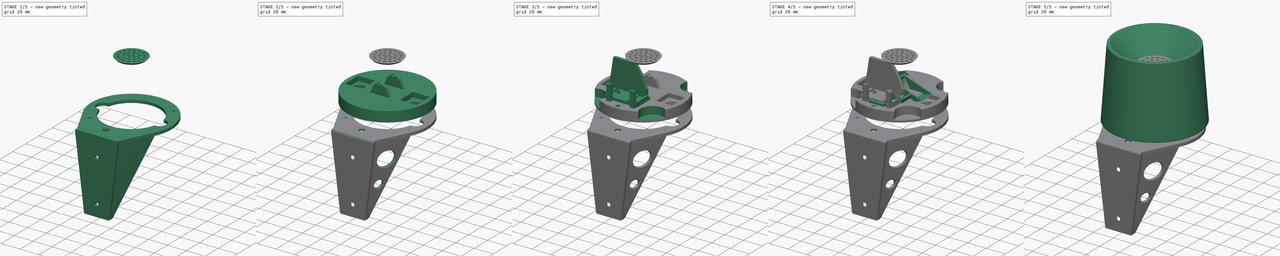
[diagram: build sequence overview — one tinted view per stage of 5, left to right]
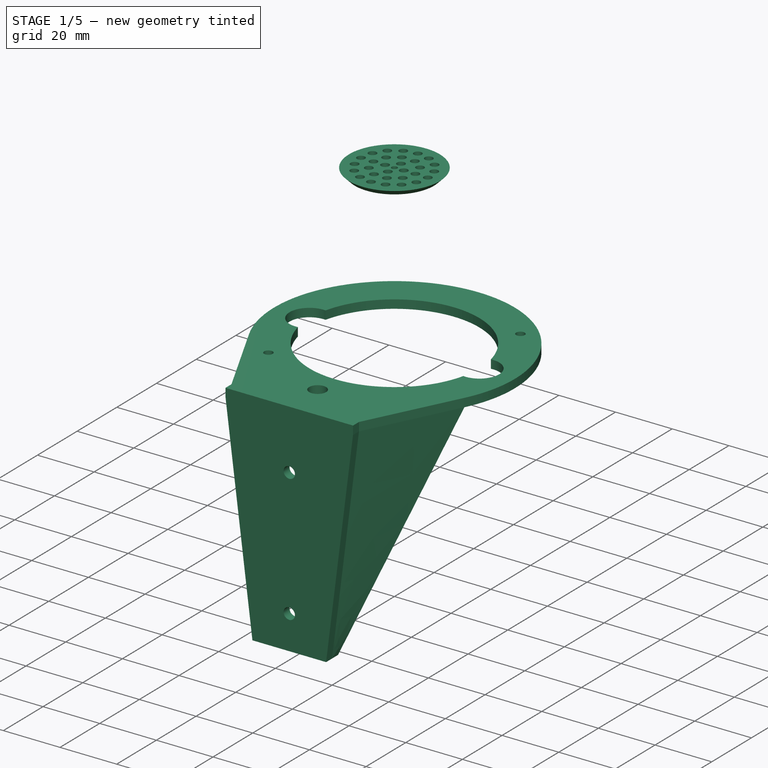
[diagram: stage 1 of 5 — iso view after this stage's code; geometry added in this stage tinted green]
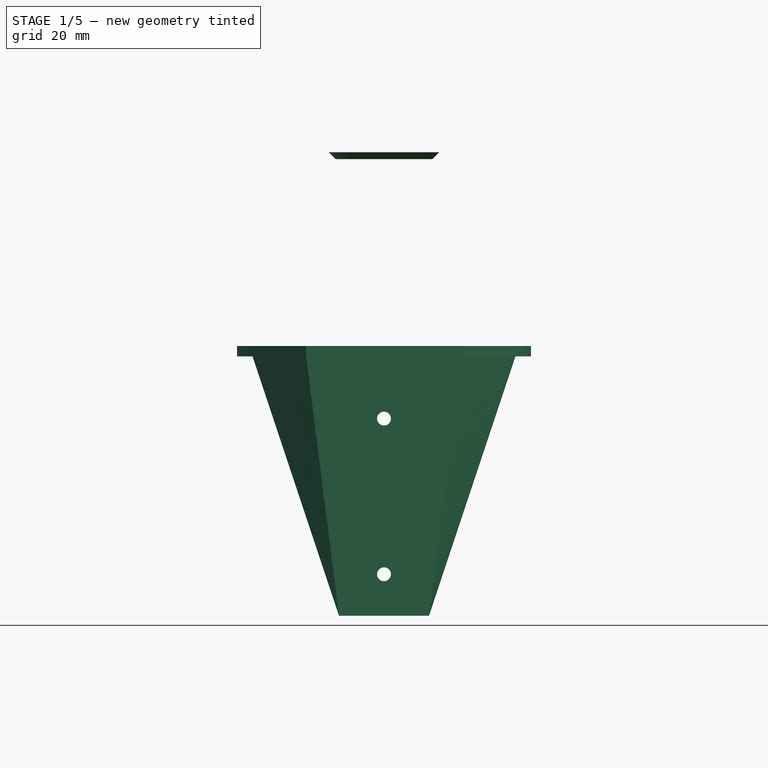
[diagram: stage 1 of 5 — front view after this stage's code; geometry added in this stage tinted green]
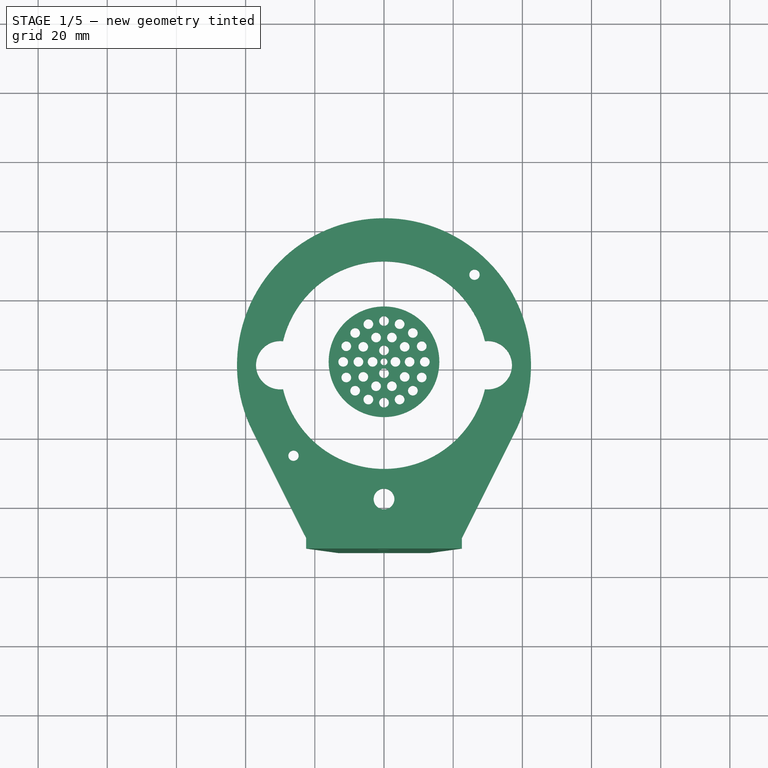
[diagram: stage 1 of 5 — top view after this stage's code; geometry added in this stage tinted green]
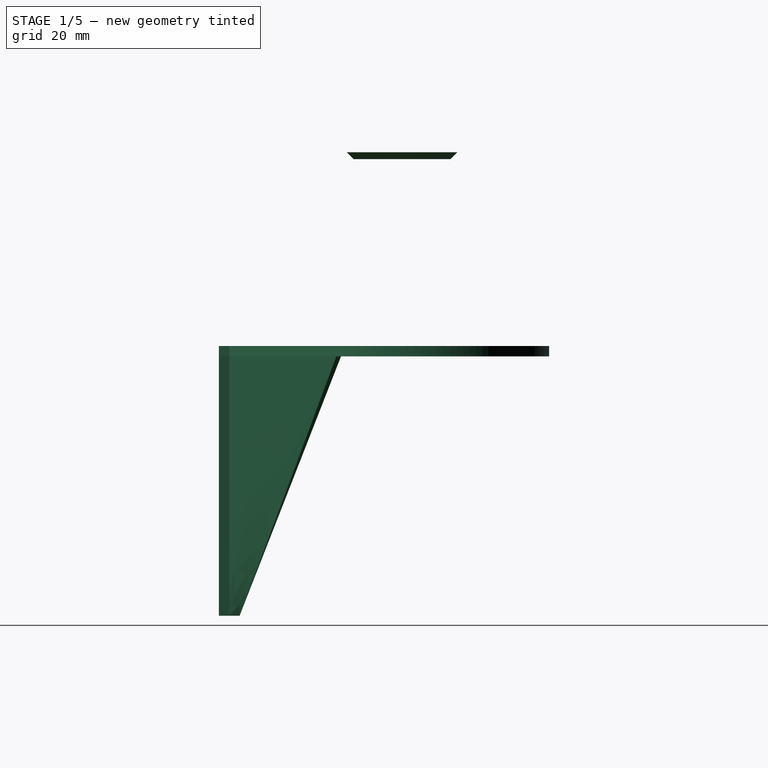
[diagram: stage 1 of 5 — right view after this stage's code; geometry added in this stage tinted green]
FCSTD DOCUMENT  (FreeCAD 0.18.4R)
Label: Rain Guage V4
License: All rights reserved
LicenseURL: http://en.wikipedia.org/wiki/All_rights_reserved
objects: Sketcher::SketchObject×63, PartDesign::Pocket×32, PartDesign::Fillet×27, PartDesign::Pad×24, PartDesign::Body×7, Part::Feature×7, PartDesign::Chamfer×6, PartDesign::Revolution×3, PartDesign::PolarPattern×3, PartDesign::AdditiveLoft×2, App::Part×1
note: 235 computed .brp shape members not serialized (recipe doc carries the construction recipe); baked Part::Feature solids carry a one-line shape summary decoded from their .brp

FEATURE [PartDesign::Body] Body001  label="Base"
  Group = -> [Sketch006,Pad004,Sketch007,Pocket002,Sketch008,Pocket003,Sketch009,Pocket004,Chamfer,Sketch010,Pocket005,Chamfer001,Sketch011,Pad005,Sketch012,Pad006,Sketch022,Pad011,Sketch023,Pocket008,Sketch024,Pad012,Sketch025,Pad013,Sketch027,Pad014,Sketch028,Pocket009,Sketch029,Pocket010,Sketch030,Pocket011,Sketch031,Pocket012,Fillet002,Fillet003,Fillet004,Chamfer004,Chamfer005,Sketch032,Pocket013,Sketch036,+21 more]
  Origin = -> Origin001
  Placement = pos=(0,0,-12) rot=(0,0,1;0rad)
  Tip = -> Fillet023
FEATURE [Sketcher::SketchObject] Sketch066
  AttachmentOffset = pos=(0,0,-14) rot=(0,0,1;0rad)
  MapMode = 5
  Placement = pos=(0,0,-14) rot=(0,0,1;0rad)
  Support = -> [XY_Plane]
  sketch-geometry (4):
    g0: LineSegment StartX=-22.5 StartY=-50 StartZ=0 EndX=22.5 EndY=-50 EndZ=0
    g1: LineSegment StartX=22.5 StartY=-50 StartZ=0 EndX=38.0051 EndY=-19.0227 EndZ=0
    g2: LineSegment StartX=-22.5 StartY=-50 StartZ=0 EndX=-38.0051 EndY=-19.0227 EndZ=0
    g3: ArcOfCircle CenterX=0 CenterY=0 CenterZ=0 NormalX=0 NormalY=0 NormalZ=1 AngleXU=0 Radius=42.5 StartAngle=5.81911 EndAngle=9.88885
  constraints (9):
    c: Symmetric(g0,g0,g-2)
    c: DistanceX(g0,g0) = 45
    c: Coincident(g1,g0)
    c: Coincident(g2,g0)
    c: Coincident(g3,g-1)
    c: Diameter(g3) = 85
    c: Tangent(g3,g2) = 1.5708
    c: Tangent(g3,g1) = -1.5708
    c: DistanceY(g0,g3) = 50
FEATURE [PartDesign::Pad] Pad031
  Length = 3
  Length2 = 100
  Profile = -> Sketch066
  Reversed = true
  Type = 0
FEATURE [Sketcher::SketchObject] Sketch068
  MapMode = 5
  Placement = pos=(0,0,-14) rot=(0,0,1;0rad)
  sketch-geometry (2):
    g0: LineSegment [constr] StartX=0 StartY=0 StartZ=0 EndX=-26.163 EndY=-26.163 EndZ=0
    g1: Circle CenterX=-26.163 CenterY=-26.163 CenterZ=0 NormalX=0 NormalY=0 NormalZ=1 AngleXU=0 Radius=1.5
  constraints (4):
    c: Coincident(g0,g-1)
    c: Coincident(g1,g0)
    c: Angle(g0,g-1) = 2.35619
    c: Distance(g0) = 37
FEATURE [PartDesign::Pocket] Pocket027
  BaseFeature = -> Pad031
  Length = 5
  Length2 = 100
  Profile = -> Sketch068
  Type = 2
FEATURE [Sketcher::SketchObject] Sketch070
  MapMode = 5
  Placement = pos=(0,0,-14) rot=(0,0,1;0rad)
  sketch-geometry (1):
    g0: Circle CenterX=30 CenterY=0 CenterZ=0 NormalX=0 NormalY=0 NormalZ=1 AngleXU=0 Radius=7
FEATURE [Sketcher::SketchObject] Sketch071
  MapMode = 5
  Placement = pos=(0,0,-14) rot=(0,0,1;0rad)
  sketch-geometry (1):
    g0: Circle CenterX=0 CenterY=-38.7 CenterZ=0 NormalX=0 NormalY=0 NormalZ=1 AngleXU=0 Radius=3
  constraints (3):
    c: PointOnObject(g0,g-2)
    c: Diameter(g0) = 6
    c: DistanceY(g0,g-1) = 38.7
FEATURE [Sketcher::SketchObject] Sketch072
  MapMode = 5
  Placement = pos=(0,0,-14) rot=(0,0,1;0rad)
  sketch-geometry (1):
    g0: Circle CenterX=0 CenterY=0 CenterZ=0 NormalX=0 NormalY=0 NormalZ=1 AngleXU=0 Radius=30
  constraints (2):
    c: Coincident(g0,g-1)
    c: Diameter(g0) = 60
FEATURE [Sketcher::SketchObject] Sketch073
  ExternalGeometry = -> [Pocket027]
  MapMode = 5
  Placement = pos=(0,0,-14) rot=(0,0,1;0rad)
  Support = -> [Pocket027]
  sketch-geometry (2):
    g0: Circle CenterX=26.163 CenterY=26.163 CenterZ=0 NormalX=0 NormalY=0 NormalZ=1 AngleXU=0 Radius=1.5
    g1: LineSegment [constr] StartX=0 StartY=0 StartZ=0 EndX=26.163 EndY=26.163 EndZ=0
  constraints (5):
    c: Equal(g-3,g0)
    c: Coincident(g1,g-1)
    c: Coincident(g1,g0)
    c: Angle(g-1,g1) = 0.785398
    c: Distance(g1) = 37
FEATURE [PartDesign::Pocket] Pocket028
  BaseFeature = -> Pocket027
  Length = 5
  Length2 = 100
  Profile = -> Sketch070
  Type = 1
FEATURE [Sketcher::SketchObject] Sketch074
  ExternalGeometry = -> [Pocket028]
  MapMode = 5
  Placement = pos=(0,0,-14) rot=(0,0,1;0rad)
  Support = -> [Pocket028]
  sketch-geometry (1):
    g0: Circle CenterX=-30 CenterY=0 CenterZ=0 NormalX=0 NormalY=0 NormalZ=1 AngleXU=0 Radius=7
  constraints (2):
    c: Symmetric(g0,g-3,g-2)
    c: Equal(g0,g-3)
FEATURE [PartDesign::Pocket] Pocket029
  BaseFeature = -> Pocket028
  Length = 5
  Length2 = 100
  Profile = -> Sketch074
  Type = 2
FEATURE [PartDesign::Pocket] Pocket030
  BaseFeature = -> Pocket029
  Length = 5
  Length2 = 100
  Profile = -> Sketch071
  Type = 2
FEATURE [PartDesign::Pocket] Pocket031
  BaseFeature = -> Pocket030
  Length = 5
  Length2 = 100
  Profile = -> Sketch073
  Type = 2
FEATURE [PartDesign::Pocket] Pocket032
  BaseFeature = -> Pocket031
  Length = 5
  Length2 = 100
  Profile = -> Sketch072
  Type = 2
FEATURE [Sketcher::SketchObject] Sketch075
  ExternalGeometry = -> [Pocket032]
  MapMode = 5
  Placement = pos=(0,-50,0) rot=(1,0,0;1.5708rad)
  Support = -> [Pocket032]
  sketch-geometry (6):
    g0: LineSegment StartX=-22.5 StartY=-17 StartZ=0 EndX=-13 EndY=-92 EndZ=0
    g1: LineSegment StartX=-13 StartY=-92 StartZ=0 EndX=13 EndY=-92 EndZ=0
    g2: LineSegment StartX=13 StartY=-92 StartZ=0 EndX=22.5 EndY=-17 EndZ=0
    g3: LineSegment StartX=22.5 StartY=-17 StartZ=0 EndX=22.5 EndY=-14 EndZ=0
    g4: LineSegment StartX=22.5 StartY=-14 StartZ=0 EndX=-22.5 EndY=-14 EndZ=0
    g5: LineSegment StartX=-22.5 StartY=-14 StartZ=0 EndX=-22.5 EndY=-17 EndZ=0
  constraints (13):
    c: Coincident(g-3,g0)
    c: Coincident(g0,g1)
    c: Coincident(g1,g2)
    c: Coincident(g2,g-4)
    c: Coincident(g2,g3)
    c: Coincident(g3,g-4)
    c: Coincident(g3,g4)
    c: Coincident(g4,g-3)
    c: Coincident(g4,g5)
    c: Coincident(g5,g0)
    c: Symmetric(g1,g0,g-2)
    c: DistanceY(g0,g0) = 75
    c: DistanceX(g1,g1) = 26
FEATURE [PartDesign::Pad] Pad032
  BaseFeature = -> Pocket032
  Length = 3
  Length2 = 100
  Profile = -> Sketch075
  Type = 0
FEATURE [Sketcher::SketchObject] Sketch076
  ExternalGeometry = -> [Pad032]
  MapMode = 5
  Placement = pos=(0,-2.02e-14,-92) rot=(1,0,0;3.14159rad)
  Support = -> [Pad032]
  sketch-geometry (4):
    g0: LineSegment StartX=13 StartY=50 StartZ=0 EndX=10 EndY=50 EndZ=0
    g1: LineSegment StartX=10 StartY=50 StartZ=0 EndX=10 EndY=47 EndZ=0
    g2: LineSegment StartX=10 StartY=47 StartZ=0 EndX=13 EndY=47 EndZ=0
    g3: LineSegment StartX=13 StartY=47 StartZ=0 EndX=13 EndY=50 EndZ=0
  constraints (11):
    c: Coincident(g0,g1)
    c: Coincident(g1,g2)
    c: Coincident(g2,g3)
    c: Coincident(g3,g0)
    c: Horizontal(g0)
    c: Horizontal(g2)
    c: Vertical(g1)
    c: Vertical(g3)
    c: Coincident(g0,g-3)
    c: DistanceX(g2,g2) = 3
    c: DistanceY(g1,g1) = 3
FEATURE [Sketcher::SketchObject] Sketch077
  ExternalGeometry = -> [Pad032]
  MapMode = 5
  Placement = pos=(0,0,-17) rot=(1,0,0;3.14159rad)
  Support = -> [Pad032]
  sketch-geometry (4):
    g0: LineSegment StartX=22.5 StartY=50 StartZ=0 EndX=19.1452 EndY=50 EndZ=0
    g1: LineSegment StartX=19.1452 StartY=50 StartZ=0 EndX=35.3224 EndY=17.6799 EndZ=0
    g2: LineSegment StartX=35.3224 StartY=17.6799 StartZ=0 EndX=38.0051 EndY=19.0227 EndZ=0
    g3: LineSegment StartX=38.0051 StartY=19.0227 StartZ=0 EndX=22.5 EndY=50 EndZ=0
  constraints (10):
    c: Coincident(g-3,g0)
    c: Horizontal(g0)
    c: Coincident(g0,g1)
    c: Coincident(g1,g2)
    c: Coincident(g2,g-3)
    c: Coincident(g2,g3)
    c: Coincident(g3,g0)
    c: Parallel(g1,g3)
    c: Perpendicular(g1,g2)
    c: Distance(g2) = 3
FEATURE [PartDesign::AdditiveLoft] AdditiveLoft
  BaseFeature = -> Pad032
  Closed = false
  Profile = -> Sketch076
  Ruled = false
  Sections = -> [Sketch077]
FEATURE [Sketcher::SketchObject] Sketch078
  ExternalGeometry = -> [AdditiveLoft]
  MapMode = 5
  Placement = pos=(0,-2.02e-14,-92) rot=(1,0,0;3.14159rad)
  Support = -> [AdditiveLoft]
  sketch-geometry (4):
    g0: LineSegment StartX=-13 StartY=50 StartZ=0 EndX=-10 EndY=50 EndZ=0
    g1: LineSegment StartX=-10 StartY=50 StartZ=0 EndX=-10 EndY=47 EndZ=0
    g2: LineSegment StartX=-10 StartY=47 StartZ=0 EndX=-13 EndY=47 EndZ=0
    g3: LineSegment StartX=-13 StartY=47 StartZ=0 EndX=-13 EndY=50 EndZ=0
  constraints (11):
    c: Coincident(g0,g1)
    c: Coincident(g1,g2)
    c: Coincident(g2,g3)
    c: Coincident(g3,g0)
    c: Horizontal(g0)
    c: Horizontal(g2)
    c: Vertical(g1)
    c: Vertical(g3)
    c: Coincident(g0,g-3)
    c: Equal(g1,g2)
    c: DistanceX(g2,g2) = 3
FEATURE [Sketcher::SketchObject] Sketch079
  ExternalGeometry = -> [AdditiveLoft]
  MapMode = 5
  Placement = pos=(0,0,-17) rot=(1,0,0;3.14159rad)
  Support = -> [AdditiveLoft]
  sketch-geometry (4):
    g0: LineSegment StartX=-22.5 StartY=50 StartZ=0 EndX=-19.1452 EndY=50 EndZ=0
    g1: LineSegment StartX=-19.1452 StartY=50 StartZ=0 EndX=-35.3224 EndY=17.6799 EndZ=0
    g2: LineSegment StartX=-35.3224 StartY=17.6799 StartZ=0 EndX=-38.0051 EndY=19.0227 EndZ=0
    g3: LineSegment StartX=-38.0051 StartY=19.0227 StartZ=0 EndX=-22.5 EndY=50 EndZ=0
  constraints (10):
    c: Horizontal(g0)
    c: Coincident(g0,g1)
    c: Coincident(g1,g2)
    c: Coincident(g2,g-3)
    c: Coincident(g2,g3)
    c: Coincident(g3,g0)
    c: Coincident(g0,g-3)
    c: Parallel(g1,g3)
    c: Perpendicular(g1,g2)
    c: Distance(g2) = 3
FEATURE [PartDesign::AdditiveLoft] AdditiveLoft001
  BaseFeature = -> AdditiveLoft
  Closed = false
  Profile = -> Sketch078
  Ruled = false
  Sections = -> [Sketch079]
FEATURE [Sketcher::SketchObject] Sketch080
  MapMode = 5
  Placement = pos=(0,-50,1.1e-14) rot=(0,0.707107,0.707107;3.14159rad)
  Support = -> [AdditiveLoft001]
  sketch-geometry (1):
    g0: Circle CenterX=0 CenterY=-35 CenterZ=0 NormalX=0 NormalY=0 NormalZ=1 AngleXU=0 Radius=2
  constraints (3):
    c: PointOnObject(g0,g-2)
    c: Diameter(g0) = 4
    c: DistanceY(g0,g-1) = 35
FEATURE [PartDesign::Pocket] Pocket033
  BaseFeature = -> AdditiveLoft001
  Length = 5
  Length2 = 100
  Profile = -> Sketch080
  Type = 2
FEATURE [Sketcher::SketchObject] Sketch081
  ExternalGeometry = -> [Pocket033]
  MapMode = 5
  Placement = pos=(0,-50,1.1e-14) rot=(0,0.707107,0.707107;3.14159rad)
  Support = -> [Pocket033]
  sketch-geometry (1):
    g0: Circle CenterX=0 CenterY=-80 CenterZ=0 NormalX=0 NormalY=0 NormalZ=1 AngleXU=0 Radius=2
  constraints (3):
    c: Equal(g-3,g0)
    c: PointOnObject(g0,g-2)
    c: DistanceY(g0,g-3) = 45
FEATURE [PartDesign::Pocket] Pocket034
  BaseFeature = -> Pocket033
  Length = 5
  Length2 = 100
  Profile = -> Sketch081
  Type = 2
FEATURE [PartDesign::Body] Body  label="Mounting-bracket"
  Group = -> [Sketch066,Pad031,Sketch068,Pocket027,Sketch070,Sketch071,Sketch072,Sketch073,Pocket028,Sketch074,Pocket029,Pocket030,Pocket031,Pocket032,Sketch075,Pad032,Sketch076,Sketch077,AdditiveLoft,Sketch078,Sketch079,AdditiveLoft001,Sketch080,Pocket033,Sketch081,Pocket034,Fillet024,Sketch082,Pocket035,Sketch083,Pocket036,Sketch084,Pocket037,Fillet025,Chamfer007,Fillet026,Fillet027,Fillet028,Fillet029,+1 more]
  Origin = -> Origin
  Tip = -> Fillet030
FEATURE [Sketcher::SketchObject] Sketch085
  MapMode = 5
  Placement = pos=(0,0,0) rot=(1,0,0;1.5708rad)
  Support = -> [XZ_Plane009]
  sketch-geometry (4):
    g0: LineSegment StartX=16 StartY=42 StartZ=0 EndX=14 EndY=40 EndZ=0
    g1: LineSegment StartX=16 StartY=42 StartZ=0 EndX=1 EndY=42 EndZ=0
    g2: LineSegment StartX=1 StartY=42 StartZ=0 EndX=1 EndY=40 EndZ=0
    g3: LineSegment StartX=1 StartY=40 StartZ=0 EndX=14 EndY=40 EndZ=0
  constraints (12):
    c: Angle(g-2,g0) = 2.35619
    c: DistanceY(g-1,g0) = 40
    c: DistanceX(g-1,g0) = 14
    c: DistanceY(g0,g0) = 2
    c: Coincident(g1,g0)
    c: Horizontal(g1)
    c: Coincident(g2,g1)
    c: Vertical(g2)
    c: Coincident(g3,g2)
    c: Horizontal(g3)
    c: Coincident(g0,g3)
    c: DistanceX(g3,g3) = 13
FEATURE [PartDesign::Revolution] Revolution002
  Angle = 360
  Axis = (0,2e-16,1)
  Base = (0,0,0)
  Placement = pos=(0,0,0) rot=(1,0,0;1.5708rad)
  Profile = -> Sketch085
  ReferenceAxis = -> Sketch085 [V_Axis]
  Reversed = true
FEATURE [Sketcher::SketchObject] Sketch086
  MapMode = 5
  Placement = pos=(0,2.78e-14,42) rot=(0,0,1;3.14159rad)
  Support = -> [Revolution002]
  sketch-geometry (1):
    g0: Circle CenterX=-11.8 CenterY=0 CenterZ=0 NormalX=0 NormalY=0 NormalZ=1 AngleXU=0 Radius=1.4
  constraints (3):
    c: PointOnObject(g0,g-1)
    c: Diameter(g0) = 2.8
    c: DistanceX(g0,g-1) = 11.8
FEATURE [PartDesign::Pocket] Pocket038
  BaseFeature = -> Revolution002
  Length = 5
  Length2 = 100
  Placement = pos=(0,0,0) rot=(1,0,0;1.5708rad)
  Profile = -> Sketch086
  Type = 2
FEATURE [PartDesign::PolarPattern] PolarPattern
  Angle = 360
  Axis = -> Sketch086 [N_Axis]
  BaseFeature = -> Pocket038
  Occurrences = 16
  Originals = -> [Pocket038]
  Placement = pos=(0,0,0) rot=(1,0,0;1.5708rad)
FEATURE [Sketcher::SketchObject] Sketch087
  ExternalGeometry = -> [PolarPattern]
  MapMode = 5
  Placement = pos=(0,2.78e-14,42) rot=(0,0,1;3.14159rad)
  Support = -> [PolarPattern]
  sketch-geometry (1):
    g0: Circle CenterX=7.4 CenterY=0 CenterZ=0 NormalX=0 NormalY=0 NormalZ=1 AngleXU=0 Radius=1.4
  constraints (3):
    c: PointOnObject(g0,g-1)
    c: Equal(g-3,g0)
    c: DistanceX(g-1,g0) = 7.4
FEATURE [PartDesign::Pocket] Pocket039
  BaseFeature = -> PolarPattern
  Length = 5
  Length2 = 100
  Placement = pos=(0,0,0) rot=(1,0,0;1.5708rad)
  Profile = -> Sketch087
  Type = 2
FEATURE [PartDesign::PolarPattern] PolarPattern001
  Angle = 360
  Axis = -> Sketch087 [N_Axis]
  BaseFeature = -> Pocket039
  Occurrences = 10
  Originals = -> [Pocket039]
  Placement = pos=(0,0,0) rot=(1,0,0;1.5708rad)
FEATURE [Sketcher::SketchObject] Sketch088
  ExternalGeometry = -> [PolarPattern001]
  MapMode = 5
  Placement = pos=(0,2.78e-14,42) rot=(0,0,1;3.14159rad)
  Support = -> [PolarPattern001]
  sketch-geometry (1):
    g0: Circle CenterX=3.3 CenterY=0 CenterZ=0 NormalX=0 NormalY=0 NormalZ=1 AngleXU=0 Radius=1.4
  constraints (3):
    c: PointOnObject(g0,g-1)
    c: Equal(g0,g-3)
    c: DistanceX(g-1,g0) = 3.3
FEATURE [PartDesign::Pocket] Pocket040
  BaseFeature = -> PolarPattern001
  Length = 5
  Length2 = 100
  Placement = pos=(0,0,0) rot=(1,0,0;1.5708rad)
  Profile = -> Sketch088
  Type = 2
FEATURE [PartDesign::PolarPattern] PolarPattern002
  Angle = 360
  Axis = -> Sketch088 [N_Axis]
  BaseFeature = -> Pocket040
  Occurrences = 4
  Originals = -> [Pocket040]
  Placement = pos=(0,0,0) rot=(1,0,0;1.5708rad)
FEATURE [PartDesign::Body] Body008  label="Filter"
  Group = -> [Sketch085,Revolution002,Sketch086,Pocket038,PolarPattern,Sketch087,Pocket039,PolarPattern001,Sketch088,Pocket040,PolarPattern002]
  Origin = -> Origin009
  Tip = -> PolarPattern002
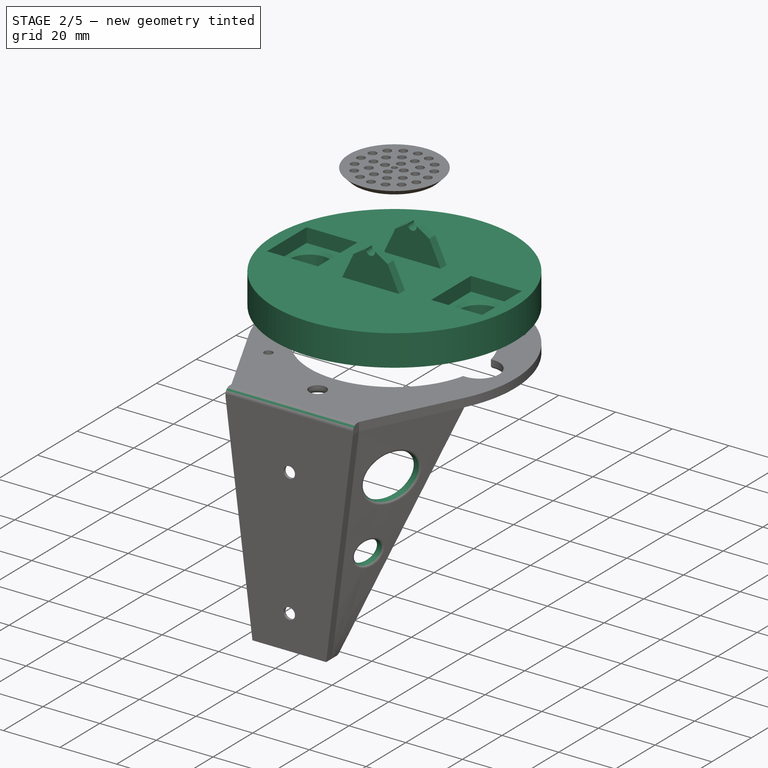
[diagram: stage 2 of 5 — iso view after this stage's code; geometry added in this stage tinted green]
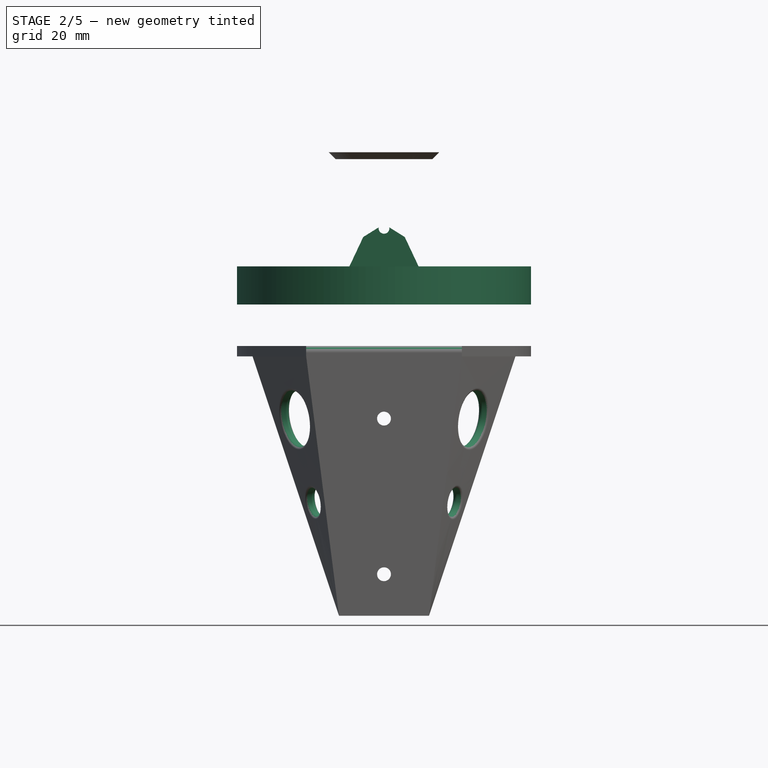
[diagram: stage 2 of 5 — front view after this stage's code; geometry added in this stage tinted green]
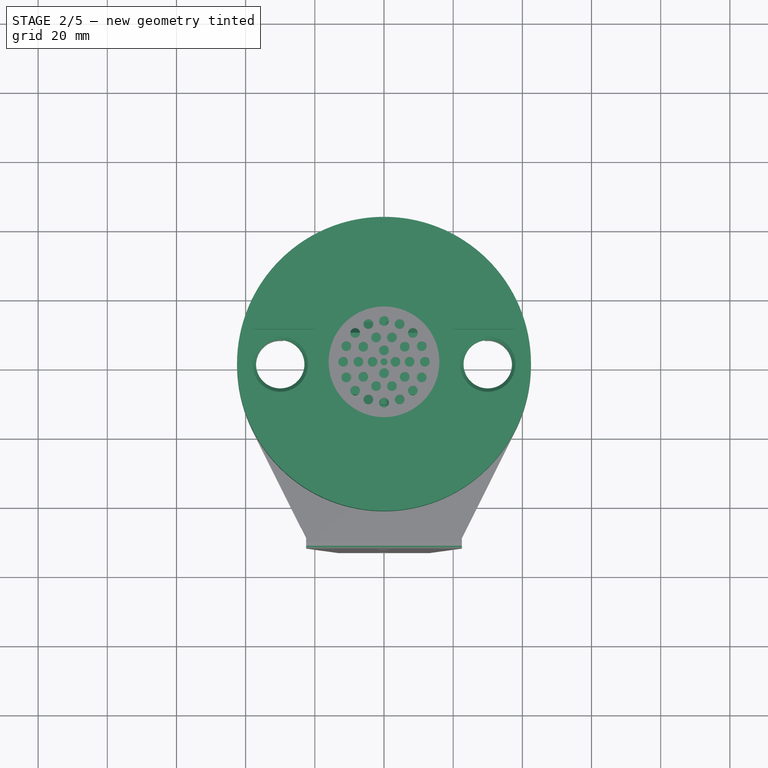
[diagram: stage 2 of 5 — top view after this stage's code; geometry added in this stage tinted green]
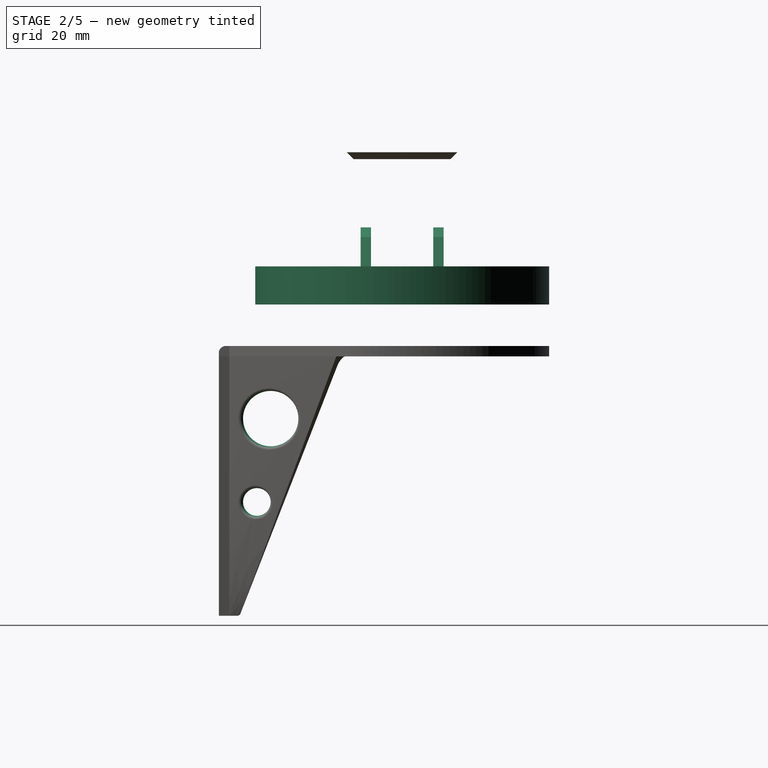
[diagram: stage 2 of 5 — right view after this stage's code; geometry added in this stage tinted green]
FEATURE [Sketcher::SketchObject] Sketch006
  AttachmentOffset = pos=(0,0,-2) rot=(0,0,1;0rad)
  MapMode = 5
  Placement = pos=(0,0,-2) rot=(0,0,1;0rad)
  Support = -> [XY_Plane001]
  sketch-geometry (1):
    g0: Circle CenterX=0 CenterY=0 CenterZ=0 NormalX=0 NormalY=0 NormalZ=1 AngleXU=0 Radius=42.5
  constraints (2):
    c: Diameter(g0) = 85
    c: Coincident(g0,g-1)
FEATURE [PartDesign::Pad] Pad004
  Length = 11
  Length2 = 100
  Profile = -> Sketch006
  Type = 0
FEATURE [Sketcher::SketchObject] Sketch007
  MapMode = 5
  Placement = pos=(0,0,9) rot=(0,0,1;0rad)
  Support = -> [Pad004]
  sketch-geometry (4):
    g0: LineSegment StartX=20 StartY=10 StartZ=0 EndX=38 EndY=10 EndZ=0
    g1: LineSegment StartX=38 StartY=10 StartZ=0 EndX=38 EndY=-10 EndZ=0
    g2: LineSegment StartX=38 StartY=-10 StartZ=0 EndX=20 EndY=-10 EndZ=0
    g3: LineSegment StartX=20 StartY=-10 StartZ=0 EndX=20 EndY=10 EndZ=0
  constraints (11):
    c: Coincident(g0,g1)
    c: Coincident(g1,g2)
    c: Coincident(g2,g3)
    c: Coincident(g3,g0)
    c: Horizontal(g0)
    c: Horizontal(g2)
    c: Vertical(g3)
    c: Symmetric(g0,g1,g-1)
    c: DistanceX(g0,g0) = 18
    c: DistanceY(g1,g1) = 20
    c: DistanceX(g-1,g2) = 20
FEATURE [PartDesign::Pocket] Pocket002
  BaseFeature = -> Pad004
  Length = 5
  Length2 = 100
  Profile = -> Sketch007
  Type = 0
FEATURE [Sketcher::SketchObject] Sketch008
  MapMode = 5
  Placement = pos=(0,0,9) rot=(0,0,1;0rad)
  Support = -> [Pad004]
  sketch-geometry (4):
    g0: LineSegment StartX=-38 StartY=10 StartZ=0 EndX=-20 EndY=10 EndZ=0
    g1: LineSegment StartX=-20 StartY=10 StartZ=0 EndX=-20 EndY=-10 EndZ=0
    g2: LineSegment StartX=-20 StartY=-10 StartZ=0 EndX=-38 EndY=-10 EndZ=0
    g3: LineSegment StartX=-38 StartY=-10 StartZ=0 EndX=-38 EndY=10 EndZ=0
  constraints (11):
    c: Coincident(g0,g1)
    c: Coincident(g1,g2)
    c: Coincident(g2,g3)
    c: Coincident(g3,g0)
    c: Horizontal(g0)
    c: Horizontal(g2)
    c: Vertical(g3)
    c: Symmetric(g0,g1,g-1)
    c: DistanceX(g0,g0) = 18
    c: DistanceY(g1,g1) = 20
    c: DistanceX(g1,g-1) = 20
FEATURE [PartDesign::Pocket] Pocket003
  BaseFeature = -> Pocket002
  Length = 5
  Length2 = 100
  Profile = -> Sketch008
  Type = 0
FEATURE [Sketcher::SketchObject] Sketch009
  ExternalGeometry = -> [Pocket003]
  MapMode = 5
  Placement = pos=(0,0,4) rot=(0,0,1;0rad)
  Support = -> [Pocket003]
  sketch-geometry (1):
    g0: Circle CenterX=30 CenterY=0 CenterZ=0 NormalX=0 NormalY=0 NormalZ=1 AngleXU=0 Radius=7
  constraints (3):
    c: PointOnObject(g0,g-1)
    c: Diameter(g0) = 14
    c: DistanceX(g0,g-3) = 8
FEATURE [PartDesign::Pocket] Pocket004
  BaseFeature = -> Pocket003
  Length = 5
  Length2 = 100
  Profile = -> Sketch009
  Type = 2
FEATURE [PartDesign::Chamfer] Chamfer
  Base = -> Pocket004 [Edge13]
  BaseFeature = -> Pocket004
  Size = 1
FEATURE [Sketcher::SketchObject] Sketch010
  ExternalGeometry = -> [Chamfer]
  MapMode = 5
  Placement = pos=(0,0,4) rot=(0,0,1;0rad)
  Support = -> [Chamfer]
  sketch-geometry (1):
    g0: Circle CenterX=-30 CenterY=0 CenterZ=0 NormalX=0 NormalY=0 NormalZ=1 AngleXU=0 Radius=7
  constraints (3):
    c: Equal(g0,g-3)
    c: PointOnObject(g0,g-1)
    c: DistanceX(g-4,g0) = 8
FEATURE [PartDesign::Pocket] Pocket005
  BaseFeature = -> Chamfer
  Length = 5
  Length2 = 100
  Profile = -> Sketch010
  Type = 2
FEATURE [PartDesign::Chamfer] Chamfer001
  Base = -> Pocket005 [Edge15]
  BaseFeature = -> Pocket005
  Size = 1
FEATURE [Sketcher::SketchObject] Sketch011
  AttachmentOffset = pos=(0,0,1) rot=(0,0,1;0rad)
  MapMode = 5
  Placement = pos=(0,9,2e-16) rot=(1,0,0;1.5708rad)
  Support = -> [Chamfer001]
  sketch-geometry (6):
    g0: ArcOfCircle CenterX=-3.2657e-12 CenterY=20 CenterZ=0 NormalX=0 NormalY=0 NormalZ=1 AngleXU=0 Radius=1.55 StartAngle=2.94682 EndAngle=6.47796
    g1: LineSegment StartX=6 StartY=17.5 StartZ=0 EndX=1.52069 EndY=20.3 EndZ=0
    g2: LineSegment StartX=-6 StartY=17.5 StartZ=0 EndX=-1.52069 EndY=20.3 EndZ=0
    g3: LineSegment StartX=6 StartY=17.5 StartZ=0 EndX=10 EndY=9 EndZ=0
    g4: LineSegment StartX=10 StartY=9 StartZ=0 EndX=-10 EndY=9 EndZ=0
    g5: LineSegment StartX=-10 StartY=9 StartZ=0 EndX=-6 EndY=17.5 EndZ=0
  constraints (16):
    c: Symmetric(g0,g0,g-2)
    c: Diameter(g0) = 3.1
    c: DistanceY(g-1,g0) = 20
    c: DistanceY(g0,g0) = 0.3
    c: Coincident(g1,g0)
    c: Coincident(g2,g0)
    c: Symmetric(g1,g2,g-2)
    c: Coincident(g1,g3)
    c: Coincident(g3,g4)
    c: Coincident(g4,g5)
    c: Coincident(g5,g2)
    c: Symmetric(g3,g4,g-2)
    c: DistanceY(g-1,g3) = 9
    c: DistanceX(g2,g1) = 12
    c: DistanceY(g4,g2) = 8.5
    c: DistanceX(g4,g3) = 20
FEATURE [PartDesign::Pad] Pad005
  BaseFeature = -> Chamfer001
  Length = 3
  Length2 = 100
  Profile = -> Sketch011
  Reversed = true
  Type = 0
FEATURE [Sketcher::SketchObject] Sketch012
  AttachmentOffset = pos=(0,0,19) rot=(0,0,1;0rad)
  MapMode = 5
  Placement = pos=(0,-9,4.2e-15) rot=(1,0,0;1.5708rad)
  Support = -> [Chamfer001]
  sketch-geometry (6):
    g0: ArcOfCircle CenterX=-2.3e-15 CenterY=20 CenterZ=0 NormalX=0 NormalY=0 NormalZ=1 AngleXU=0 Radius=1.55 StartAngle=2.94682 EndAngle=6.47796
    g1: LineSegment StartX=6 StartY=17.463 StartZ=0 EndX=1.52069 EndY=20.3 EndZ=0
    g2: LineSegment StartX=-6 StartY=17.463 StartZ=0 EndX=-1.52069 EndY=20.3 EndZ=0
    g3: LineSegment StartX=6 StartY=17.463 StartZ=0 EndX=10 EndY=9 EndZ=0
    g4: LineSegment StartX=10 StartY=9 StartZ=0 EndX=-10 EndY=9 EndZ=0
    g5: LineSegment StartX=-10 StartY=9 StartZ=0 EndX=-6 EndY=17.463 EndZ=0
  constraints (15):
    c: Symmetric(g0,g0,g-2)
    c: Diameter(g0) = 3.1
    c: DistanceY(g-1,g0) = 20
    c: DistanceY(g0,g0) = 0.3
    c: Coincident(g1,g0)
    c: Coincident(g2,g0)
    c: Symmetric(g1,g2,g-2)
    c: Coincident(g1,g3)
    c: Coincident(g3,g4)
    c: Coincident(g4,g5)
    c: Coincident(g5,g2)
    c: Symmetric(g3,g4,g-2)
    c: DistanceY(g-1,g3) = 9
    c: DistanceX(g2,g1) = 12
    c: DistanceX(g4,g3) = 20
FEATURE [PartDesign::Pad] Pad006
  BaseFeature = -> Pad005
  Length = 3
  Length2 = 100
  Profile = -> Sketch012
  Type = 0
FEATURE [PartDesign::Fillet] Fillet024
  Base = -> Pocket034 [Edge75,Edge38,Edge37,Edge36,Edge74]
  BaseFeature = -> Pocket034
  Radius = 2.5
FEATURE [Sketcher::SketchObject] Sketch082
  ExternalGeometry = -> [Fillet024]
  MapMode = 5
  Placement = pos=(0,0,-17) rot=(1,0,0;3.14159rad)
  Support = -> [Fillet024]
  sketch-geometry (1):
    g0: Circle CenterX=-26.163 CenterY=26.163 CenterZ=0 NormalX=0 NormalY=0 NormalZ=1 AngleXU=0 Radius=3
  constraints (2):
    c: Coincident(g0,g-3)
    c: Diameter(g0) = 6
FEATURE [PartDesign::Pocket] Pocket035
  BaseFeature = -> Fillet024
  Length = 5
  Length2 = 100
  Profile = -> Sketch082
  Reversed = true
  Type = 0
FEATURE [Sketcher::SketchObject] Sketch083
  AttachmentOffset = pos=(0,0,-38) rot=(0,0,1;0rad)
  MapMode = 5
  Placement = pos=(-38,8.4e-15,-8.4e-15) rot=(0.57735,0.57735,0.57735;2.0944rad)
  Support = -> [YZ_Plane]
  sketch-geometry (1):
    g0: Circle CenterX=-38 CenterY=-35 CenterZ=0 NormalX=0 NormalY=0 NormalZ=1 AngleXU=0 Radius=8
  constraints (3):
    c: Diameter(g0) = 16
    c: DistanceX(g0,g-1) = 38
    c: DistanceY(g0,g-1) = 35
FEATURE [PartDesign::Pocket] Pocket036
  BaseFeature = -> Pocket035
  Length = 5
  Length2 = 100
  Profile = -> Sketch083
  Reversed = true
  Type = 1
FEATURE [Sketcher::SketchObject] Sketch084
  AttachmentOffset = pos=(0,0,29) rot=(0,0,1;0rad)
  MapMode = 5
  Placement = pos=(29,-6.4e-15,6.4e-15) rot=(0.57735,0.57735,0.57735;2.0944rad)
  Support = -> [YZ_Plane]
  sketch-geometry (1):
    g0: Circle CenterX=-42 CenterY=-59.1 CenterZ=0 NormalX=0 NormalY=0 NormalZ=1 AngleXU=0 Radius=4
  constraints (3):
    c: Diameter(g0) = 8
    c: DistanceX(g0,g-1) = 42
    c: DistanceY(g0,g-1) = 59.1
FEATURE [PartDesign::Pocket] Pocket037
  BaseFeature = -> Pocket036
  Length = 5
  Length2 = 100
  Profile = -> Sketch084
  Type = 1
FEATURE [PartDesign::Fillet] Fillet025
  Base = -> Pocket037 [Edge88,Edge89,Edge66,Edge67,Edge68,Edge69,Edge90,Edge91]
  BaseFeature = -> Pocket037
  Radius = 1
FEATURE [PartDesign::Chamfer] Chamfer007
  Base = -> Fillet025 [Edge80,Edge81]
  BaseFeature = -> Fillet025
  Size = 2
FEATURE [PartDesign::Fillet] Fillet026
  Base = -> Chamfer007 [Edge58,Edge57,Edge55,Edge56,Edge48,Edge47,Edge50,Edge49]
  BaseFeature = -> Chamfer007
  Radius = 1
FEATURE [PartDesign::Fillet] Fillet027
  Base = -> Fillet026 [Edge64,Edge10]
  BaseFeature = -> Fillet026
  Radius = 1
FEATURE [PartDesign::Fillet] Fillet028
  Base = -> Fillet027 [Edge51,Edge49,Edge50,Edge52,Edge53]
  BaseFeature = -> Fillet027
  Radius = 1
FEATURE [PartDesign::Fillet] Fillet029
  Base = -> Fillet028 [Edge17]
  BaseFeature = -> Fillet028
  Radius = 2
FEATURE [PartDesign::Fillet] Fillet030
  Base = -> Fillet029 [Edge126]
  BaseFeature = -> Fillet029
  Radius = 2
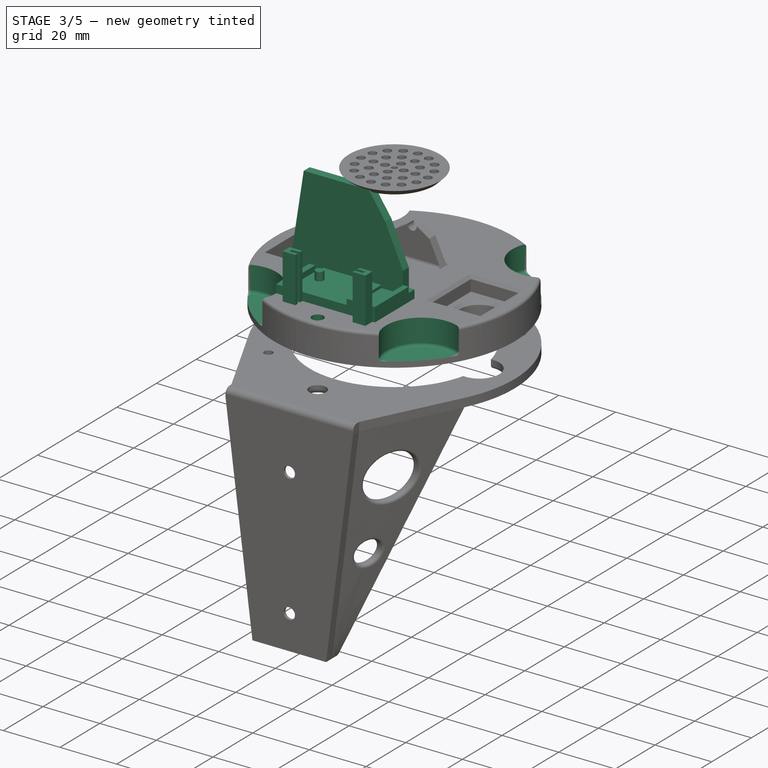
[diagram: stage 3 of 5 — iso view after this stage's code; geometry added in this stage tinted green]
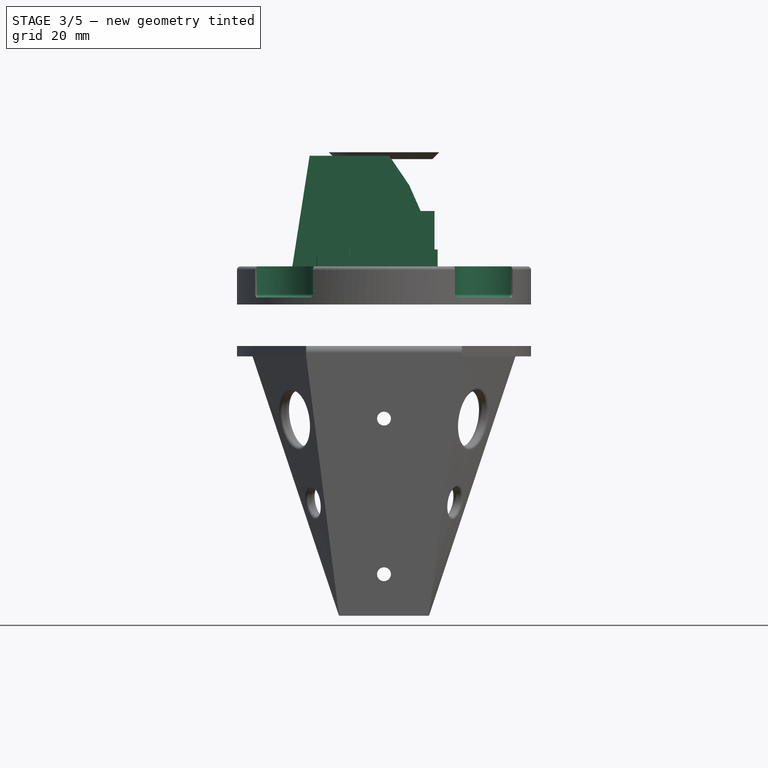
[diagram: stage 3 of 5 — front view after this stage's code; geometry added in this stage tinted green]
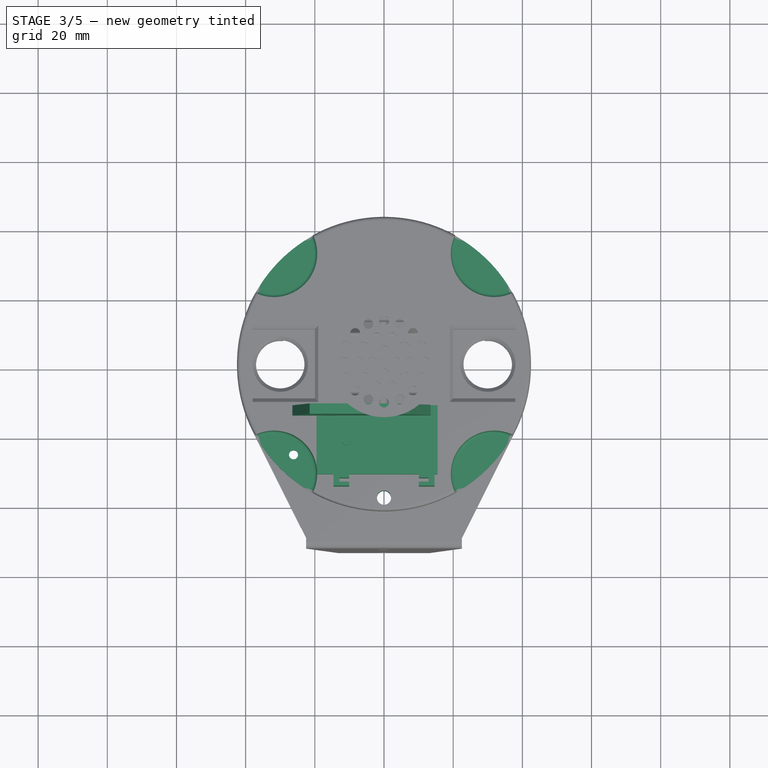
[diagram: stage 3 of 5 — top view after this stage's code; geometry added in this stage tinted green]
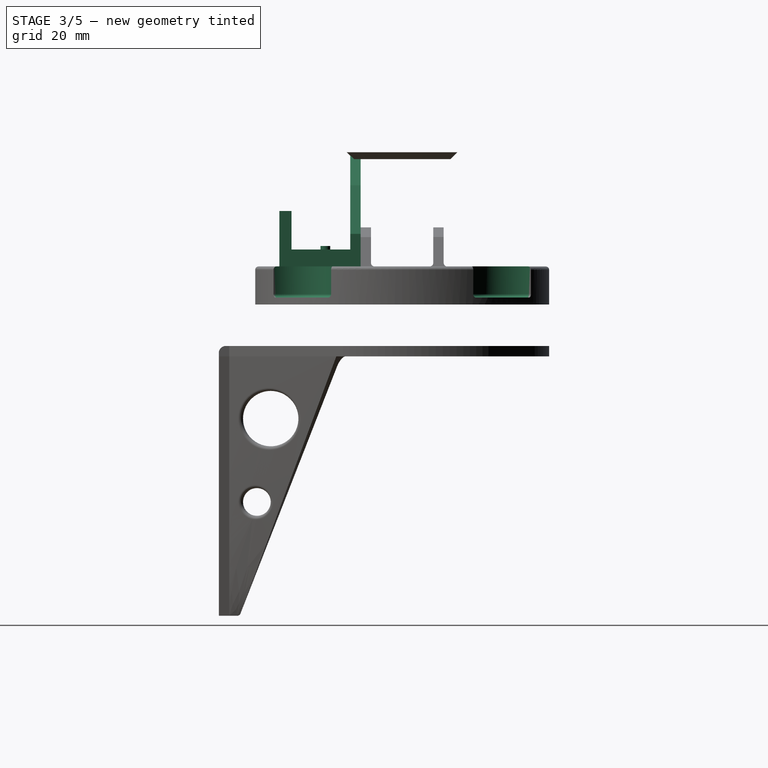
[diagram: stage 3 of 5 — right view after this stage's code; geometry added in this stage tinted green]
FEATURE [PartDesign::Body] Body004  label="Sensor"
  Group = -> [Sketch016,Pad007,Sketch017,Pocket006,Sketch018,Pad008,Sketch019,Pocket007]
  Origin = -> Origin004
  Placement = pos=(13.5,-15,1.5) rot=(0,0,1;3.14159rad)
  Tip = -> Pocket007
FEATURE [Sketcher::SketchObject] Sketch022
  ExternalGeometry = -> [Pad006]
  MapMode = 5
  Placement = pos=(0,0,9) rot=(0,0,1;0rad)
  Support = -> [Pad006]
  sketch-geometry (4):
    g0: LineSegment StartX=-19.5 StartY=-12 StartZ=0 EndX=15.5 EndY=-12 EndZ=0
    g1: LineSegment StartX=15.5 StartY=-12 StartZ=0 EndX=15.5 EndY=-32 EndZ=0
    g2: LineSegment StartX=15.5 StartY=-32 StartZ=0 EndX=-19.5 EndY=-32 EndZ=0
    g3: LineSegment StartX=-19.5 StartY=-32 StartZ=0 EndX=-19.5 EndY=-12 EndZ=0
  constraints (12):
    c: Coincident(g0,g1)
    c: Coincident(g1,g2)
    c: Coincident(g2,g3)
    c: Coincident(g3,g0)
    c: Horizontal(g0)
    c: Horizontal(g2)
    c: Vertical(g1)
    c: Vertical(g3)
    c: Horizontal(g-3,g0)
    c: DistanceY(g1,g1) = 20
    c: DistanceX(g2,g2) = 35
    c: DistanceX(g-1,g0) = 15.5
FEATURE [PartDesign::Pad] Pad011
  BaseFeature = -> Pad006
  Length = 2.9
  Length2 = 100
  Profile = -> Sketch022
  Type = 0
FEATURE [Sketcher::SketchObject] Sketch023
  ExternalGeometry = -> [Pad011]
  MapMode = 5
  Placement = pos=(0,0,11.9) rot=(0,0,1;0rad)
  Support = -> [Pad011]
  sketch-geometry (4):
    g0: LineSegment StartX=5.9 StartY=-15 StartZ=0 EndX=13.3 EndY=-15 EndZ=0
    g1: LineSegment StartX=13.3 StartY=-15 StartZ=0 EndX=13.3 EndY=-28.4 EndZ=0
    g2: LineSegment StartX=13.3 StartY=-28.4 StartZ=0 EndX=5.9 EndY=-28.4 EndZ=0
    g3: LineSegment StartX=5.9 StartY=-28.4 StartZ=0 EndX=5.9 EndY=-15 EndZ=0
  constraints (12):
    c: Coincident(g0,g1)
    c: Coincident(g1,g2)
    c: Coincident(g2,g3)
    c: Coincident(g3,g0)
    c: Horizontal(g0)
    c: Horizontal(g2)
    c: Vertical(g1)
    c: Vertical(g3)
    c: DistanceX(g0,g0) = 7.4
    c: DistanceY(g3,g3) = 13.4
    c: DistanceY(g0,g-3) = 3
    c: DistanceX(g0,g-3) = 2.2
FEATURE [PartDesign::Pocket] Pocket008
  BaseFeature = -> Pad011
  Length = 1
  Length2 = 100
  Profile = -> Sketch023
  Type = 0
FEATURE [Sketcher::SketchObject] Sketch024
  ExternalGeometry = -> [Pocket008]
  MapMode = 5
  Placement = pos=(0,0,11.9) rot=(0,0,1;0rad)
  Support = -> [Pocket008]
  sketch-geometry (1):
    g0: Circle CenterX=-10.9 CenterY=-22.2 CenterZ=0 NormalX=0 NormalY=0 NormalZ=1 AngleXU=0 Radius=1.4
  constraints (3):
    c: Diameter(g0) = 2.8
    c: DistanceX(g-3,g0) = 8.6
    c: DistanceY(g0,g-3) = 10.2
FEATURE [PartDesign::Pad] Pad012
  BaseFeature = -> Pocket008
  Length = 3
  Length2 = 100
  Profile = -> Sketch024
  Type = 0
FEATURE [Sketcher::SketchObject] Sketch025
  ExternalGeometry = -> [Pad012]
  MapMode = 5
  Placement = pos=(0,0,11.9) rot=(0,0,1;0rad)
  Support = -> [Pad012]
  sketch-geometry (6):
    g0: LineSegment StartX=5.5 StartY=-32 StartZ=0 EndX=15.5 EndY=-32 EndZ=0
    g1: LineSegment StartX=15.5 StartY=-32 StartZ=0 EndX=15.5 EndY=-14.95 EndZ=0
    g2: LineSegment StartX=5.5 StartY=-32 StartZ=0 EndX=5.5 EndY=-29.45 EndZ=0
    g3: LineSegment StartX=5.5 StartY=-29.45 StartZ=0 EndX=13.6 EndY=-29.45 EndZ=0
    g4: LineSegment StartX=13.6 StartY=-29.45 StartZ=0 EndX=13.6 EndY=-14.95 EndZ=0
    g5: LineSegment StartX=13.6 StartY=-14.95 StartZ=0 EndX=15.5 EndY=-14.95 EndZ=0
  constraints (17):
    c: Coincident(g0,g1)
    c: Horizontal(g0)
    c: Coincident(g0,g2)
    c: Vertical(g2)
    c: Coincident(g2,g3)
    c: Horizontal(g3)
    c: Coincident(g3,g4)
    c: Vertical(g4)
    c: Coincident(g4,g5)
    c: Horizontal(g5)
    c: Coincident(g0,g-4)
    c: DistanceY(g4,g4) = 14.5
    c: DistanceX(g3,g0) = 1.9
    c: DistanceY(g0,g3) = 2.55
    c: DistanceX(g0,g0) = 10
    c: Vertical(g1)
    c: Coincident(g1,g5)
FEATURE [PartDesign::Pad] Pad013
  BaseFeature = -> Pad012
  Length = 2
  Length2 = 100
  Profile = -> Sketch025
  Type = 0
FEATURE [Sketcher::SketchObject] Sketch027
  ExternalGeometry = -> [Pad013]
  MapMode = 5
  Placement = pos=(0,-12,3e-15) rot=(1,0,0;1.5708rad)
  Support = -> [Pad013]
  sketch-geometry (6):
    g0: LineSegment StartX=-26.5 StartY=9 StartZ=0 EndX=13.5 EndY=9 EndZ=0
    g1: LineSegment StartX=13.5 StartY=9 StartZ=0 EndX=13.5 EndY=18.4 EndZ=0
    g2: LineSegment StartX=13.5 StartY=18.4 StartZ=0 EndX=7.3 EndY=32.4573 EndZ=0
    g3: LineSegment StartX=-21.5 StartY=41 StartZ=0 EndX=-26.5 EndY=9 EndZ=0
    g4: LineSegment StartX=7.3 StartY=32.4573 StartZ=0 EndX=1.5 EndY=41 EndZ=0
    g5: LineSegment StartX=1.5 StartY=41 StartZ=0 EndX=-21.5 EndY=41 EndZ=0
  constraints (18):
    c: Horizontal(g0)
    c: Coincident(g0,g1)
    c: Vertical(g1)
    c: Coincident(g1,g2)
    c: Coincident(g3,g0)
    c: Horizontal(g-3,g0)
    c: DistanceX(g0,g0) = 40
    c: DistanceX(g-1,g0) = 13.5
    c: Angle(g2,g-1) = 1.15541
    c: DistanceY(g1,g1) = 9.4
    c: DistanceX(g0,g3) = 5
    c: Coincident(g2,g4)
    c: Coincident(g5,g4)
    c: Horizontal(g5)
    c: DistanceY(g0,g5) = 32
    c: Coincident(g3,g5)
    c: DistanceX(g5,g5) = 23
    c: DistanceX(g4,g2) = 5.8
FEATURE [PartDesign::Pad] Pad014  label="Divide-Wall"
  BaseFeature = -> Pad013
  Length = 3
  Length2 = 100
  Profile = -> Sketch027
  Type = 0
FEATURE [Sketcher::SketchObject] Sketch028
  ExternalGeometry = -> [Pad014]
  MapMode = 5
  Placement = pos=(0,0,9) rot=(0,0,1;0rad)
  Support = -> [Pad014]
  sketch-geometry (3):
    g0: LineSegment [constr] StartX=0 StartY=0 StartZ=0 EndX=31.8198 EndY=31.8198 EndZ=0
    g1: ArcOfCircle CenterX=31.8198 CenterY=31.8198 CenterZ=0 NormalX=0 NormalY=0 NormalZ=1 AngleXU=0 Radius=12.5 StartAngle=2.69603 EndAngle=5.15795
    g2: ArcOfCircle CenterX=0 CenterY=0 CenterZ=0 NormalX=0 NormalY=0 NormalZ=1 AngleXU=0 Radius=42.5 StartAngle=0.504419 EndAngle=1.06638
  constraints (9):
    c: Coincident(g0,g-1)
    c: Coincident(g1,g0)
    c: PointOnObject(g1,g-3)
    c: Diameter(g1) = 25
    c: Angle(g-1,g0) = 0.785398
    c: Distance(g-1,g1) = 45
    c: Coincident(g2,g-1)
    c: Coincident(g2,g1)
    c: Coincident(g2,g1)
FEATURE [PartDesign::Pocket] Pocket009
  BaseFeature = -> Pad014
  Length = 9
  Length2 = 100
  Profile = -> Sketch028
  Type = 0
FEATURE [Sketcher::SketchObject] Sketch029
  ExternalGeometry = -> [Pad014]
  MapMode = 5
  Placement = pos=(0,0,9) rot=(0,0,1;0rad)
  Support = -> [Pad014]
  sketch-geometry (3):
    g0: LineSegment [constr] StartX=0 StartY=0 StartZ=0 EndX=-31.8198 EndY=31.8198 EndZ=0
    g1: ArcOfCircle CenterX=-31.8198 CenterY=31.8198 CenterZ=0 NormalX=0 NormalY=0 NormalZ=1 AngleXU=0 Radius=12.5 StartAngle=4.26683 EndAngle=6.72875
    g2: ArcOfCircle CenterX=0 CenterY=0 CenterZ=0 NormalX=0 NormalY=0 NormalZ=1 AngleXU=0 Radius=42.5 StartAngle=2.07522 EndAngle=2.63717
  constraints (9):
    c: Coincident(g0,g-1)
    c: Coincident(g1,g0)
    c: PointOnObject(g1,g-3)
    c: Diameter(g1) = 25
    c: Angle(g-1,g0) = 2.35619
    c: Distance(g-1,g1) = 45
    c: Coincident(g2,g-1)
    c: Coincident(g2,g1)
    c: Coincident(g2,g1)
FEATURE [PartDesign::Pocket] Pocket010
  BaseFeature = -> Pocket009
  Length = 9
  Length2 = 100
  Profile = -> Sketch029
  Type = 0
FEATURE [Sketcher::SketchObject] Sketch030
  ExternalGeometry = -> [Pad014]
  MapMode = 5
  Placement = pos=(0,0,9) rot=(0,0,1;0rad)
  Support = -> [Pad014]
  sketch-geometry (3):
    g0: LineSegment [constr] StartX=0 StartY=0 StartZ=0 EndX=31.8198 EndY=-31.8198 EndZ=0
    g1: ArcOfCircle CenterX=31.8198 CenterY=-31.8198 CenterZ=0 NormalX=0 NormalY=0 NormalZ=1 AngleXU=0 Radius=12.5 StartAngle=1.12524 EndAngle=3.58715
    g2: ArcOfCircle CenterX=0 CenterY=0 CenterZ=0 NormalX=0 NormalY=0 NormalZ=1 AngleXU=0 Radius=42.5 StartAngle=5.21681 EndAngle=5.77877
  constraints (9):
    c: Coincident(g0,g-1)
    c: Coincident(g1,g0)
    c: PointOnObject(g1,g-3)
    c: Diameter(g1) = 25
    c: Distance(g-1,g1) = 45
    c: Coincident(g2,g-1)
    c: Coincident(g2,g1)
    c: Coincident(g2,g1)
    c: Angle(g0,g-1) = 0.785398
FEATURE [PartDesign::Pocket] Pocket011
  BaseFeature = -> Pocket010
  Length = 9
  Length2 = 100
  Profile = -> Sketch030
  Type = 0
FEATURE [Sketcher::SketchObject] Sketch031
  AttachmentOffset = pos=(0,0,3) rot=(0,0,1;0rad)
  ExternalGeometry = -> [Pad014]
  MapMode = 5
  Placement = pos=(0,0,12) rot=(0,0,1;0rad)
  Support = -> [Pad014]
  sketch-geometry (3):
    g0: LineSegment [constr] StartX=0 StartY=0 StartZ=0 EndX=-31.8198 EndY=-31.8198 EndZ=0
    g1: ArcOfCircle CenterX=-31.8198 CenterY=-31.8198 CenterZ=0 NormalX=0 NormalY=0 NormalZ=1 AngleXU=0 Radius=12.5 StartAngle=5.83762 EndAngle=8.29954
    g2: ArcOfCircle CenterX=0 CenterY=0 CenterZ=0 NormalX=0 NormalY=0 NormalZ=1 AngleXU=0 Radius=42.5 StartAngle=3.64601 EndAngle=4.20797
  constraints (9):
    c: Coincident(g0,g-1)
    c: Coincident(g1,g0)
    c: PointOnObject(g1,g-3)
    c: Diameter(g1) = 25
    c: Distance(g-1,g1) = 45
    c: Coincident(g2,g-1)
    c: Coincident(g2,g1)
    c: Coincident(g2,g1)
    c: Angle(g0,g-1) = 2.35619
FEATURE [PartDesign::Pocket] Pocket012
  BaseFeature = -> Pocket011
  Length = 12
  Length2 = 100
  Profile = -> Sketch031
  Type = 0
FEATURE [PartDesign::Fillet] Fillet002
  Base = -> Pocket012 [Edge15,Edge31,Edge27,Edge23,Edge19]
  BaseFeature = -> Pocket012
  Radius = 1
FEATURE [PartDesign::Fillet] Fillet003
  Base = -> Fillet002 [Edge31,Edge45,Edge38,Edge25]
  BaseFeature = -> Fillet002
  Radius = 1
FEATURE [PartDesign::Fillet] Fillet004
  Base = -> Fillet003 [Edge79,Edge78,Edge71]
  BaseFeature = -> Fillet003
  Radius = 1
FEATURE [PartDesign::Chamfer] Chamfer004
  Base = -> Fillet004 [Edge12,Edge10,Edge13]
  BaseFeature = -> Fillet004
  Size = 1
FEATURE [PartDesign::Chamfer] Chamfer005
  Base = -> Chamfer004 [Edge17,Edge16,Edge18]
  BaseFeature = -> Chamfer004
  Size = 1
FEATURE [Sketcher::SketchObject] Sketch032
  MapMode = 5
  Placement = pos=(0,0,11.9) rot=(0,0,1;0rad)
  sketch-geometry (4):
    g0: LineSegment StartX=-17.5 StartY=-29 StartZ=0 EndX=-14.5 EndY=-29 EndZ=0
    g1: LineSegment StartX=-14.5 StartY=-29 StartZ=0 EndX=-14.5 EndY=-15 EndZ=0
    g2: LineSegment StartX=-14.5 StartY=-15 StartZ=0 EndX=-17.5 EndY=-15 EndZ=0
    g3: LineSegment StartX=-17.5 StartY=-15 StartZ=0 EndX=-17.5 EndY=-29 EndZ=0
  constraints (9):
    c: Coincident(g0,g1)
    c: Coincident(g1,g2)
    c: Coincident(g2,g3)
    c: Coincident(g3,g0)
    c: Horizontal(g0)
    c: Horizontal(g2)
    c: Vertical(g1)
    c: Vertical(g3)
    c: DistanceX(g0,g0) = 3
FEATURE [PartDesign::Pocket] Pocket013
  BaseFeature = -> Chamfer005
  Length = 2
  Length2 = 100
  Profile = -> Sketch032
  Type = 0
FEATURE [Part::Feature] Part__Feature001  label="WEMOS_D1_MINI_V_3_0_0_PUSH_BUTTON_180111_01"
  Placement = pos=(-9.5,-13.425,1.258) rot=(0,0,1;0rad)
  shape: bbox 3.5 x 4.6 x 1.5 mm, 15 faces (baked)
FEATURE [Part::Feature] Part__Feature005  label="_050170001_stp1_01"
  Placement = pos=(0.75,-13.975,1.693) rot=(1,0,0;1.5708rad)
  shape: bbox 8.2 x 5.4 x 3.3 mm, 428 faces (baked)
FEATURE [Part::Feature] Part__Feature  label="WEMOS_D1_MINI_V_3_0_0_PCB_180112_01"
  shape: bbox 25.7 x 34.25 x 1.052 mm, 2188 faces (baked)
FEATURE [Part::Feature] Part__Feature002  label="QFN_32_1EP_5x5mm_Pitch0_5mm_step1_01"
  Placement = pos=(-0.428608,4.20361,0.508) rot=(0,0,-1;0.785398rad)
  shape: bbox 7.043 x 7.043 x 0.77 mm, 206 faces (baked)
FEATURE [Part::Feature] Part__Feature004  label="ABM8_STEP1_01"
  Placement = pos=(5.40135,7.61497,0.508254) rot=(0.862856,-0.357407,-0.357407;1.71777rad)
  shape: bbox 3.664 x 3.664 x 0.8003 mm, 120 faces (baked)
FEATURE [Part::Feature] Part__Feature006  label="SOIC_16_3_9x9_9mm_Pitch1_27mm_step1_01"
  Placement = pos=(-2.85,-5.075,-0.508) rot=(0,1,0;3.14159rad)
  shape: bbox 6 x 9.9 x 1.75 mm, 276 faces (baked)
FEATURE [Part::Feature] Part__Feature003  label="SOIJ_8_5_3x5_3mm_Pitch1_27mm_step1_01"
  Placement = pos=(5.22,-5.255,0.508) rot=(0,0,1;1.5708rad)
  shape: bbox 5.3 x 7.94 x 2.01 mm, 156 faces (baked)
FEATURE [App::Part] ASSEMBLY  label="ESP8266"
  Group = -> [Part__Feature,Part__Feature001,Part__Feature002,Part__Feature003,Part__Feature004,Part__Feature005,Part__Feature006]
  Origin = -> Origin005
  Placement = pos=(0,-34.1,16.5) rot=(0,-0.707107,0.707107;3.14159rad)
FEATURE [Sketcher::SketchObject] Sketch036
  MapMode = 5
  Placement = pos=(0,0,9) rot=(0,0,1;0rad)
  sketch-geometry (1):
    g0: Circle CenterX=0 CenterY=-38.7 CenterZ=0 NormalX=0 NormalY=0 NormalZ=1 AngleXU=0 Radius=2.05
  constraints (3):
    c: PointOnObject(g0,g-2)
    c: Diameter(g0) = 4.1
    c: DistanceY(g0,g-1) = 38.7
FEATURE [PartDesign::Pocket] Pocket014
  BaseFeature = -> Pocket013
  Length = 5
  Length2 = 100
  Profile = -> Sketch036
  Type = 2
FEATURE [Sketcher::SketchObject] Sketch038
  MapMode = 5
  Placement = pos=(0,0,-1.8e-15) rot=(0,0,1;0rad)
  sketch-geometry (2):
    g0: LineSegment [constr] StartX=0 StartY=0 StartZ=0 EndX=-31.8198 EndY=-31.8198 EndZ=0
    g1: Circle CenterX=-26.163 CenterY=-26.163 CenterZ=0 NormalX=0 NormalY=0 NormalZ=1 AngleXU=0 Radius=1.3
  constraints (6):
    c: Coincident(g0,g-1)
    c: PointOnObject(g1,g0)
    c: Distance(g0,g1) = 8
    c: Angle(g0,g-1) = 2.35619
    c: Radius(g1) = 1.3
    c: Distance(g-1,g0) = 45
FEATURE [PartDesign::Pocket] Pocket016
  BaseFeature = -> Pocket014
  Length = 5
  Length2 = 100
  Profile = -> Sketch038
  Type = 2
FEATURE [Sketcher::SketchObject] Sketch040
  MapMode = 5
  Placement = pos=(0,0,9) rot=(0,0,1;0rad)
  sketch-geometry (8):
    g0: LineSegment StartX=10.1 StartY=-33.15 StartZ=0 EndX=10.1 EndY=-32 EndZ=0
    g1: LineSegment StartX=10.1 StartY=-32 StartZ=0 EndX=14.6 EndY=-32 EndZ=0
    g2: LineSegment StartX=14.6 StartY=-32 StartZ=0 EndX=14.6 EndY=-35.5 EndZ=0
    g3: LineSegment StartX=14.6 StartY=-35.5 StartZ=0 EndX=10.1 EndY=-35.5 EndZ=0
    g4: LineSegment StartX=10.1 StartY=-35.5 StartZ=0 EndX=10.1 EndY=-34.35 EndZ=0
    g5: LineSegment StartX=10.1 StartY=-34.35 StartZ=0 EndX=12.9 EndY=-34.35 EndZ=0
    g6: LineSegment StartX=12.9 StartY=-34.35 StartZ=0 EndX=12.9 EndY=-33.15 EndZ=0
    g7: LineSegment StartX=12.9 StartY=-33.15 StartZ=0 EndX=10.1 EndY=-33.15 EndZ=0
  constraints (24):
    c: Vertical(g0)
    c: Coincident(g0,g1)
    c: Horizontal(g1)
    c: Coincident(g1,g2)
    c: Vertical(g2)
    c: Coincident(g2,g3)
    c: Horizontal(g3)
    c: Coincident(g3,g4)
    c: Vertical(g4)
    c: Coincident(g4,g5)
    c: Horizontal(g5)
    c: Coincident(g5,g6)
    c: Vertical(g6)
    c: Coincident(g6,g7)
    c: Coincident(g7,g0)
    c: Horizontal(g7)
    c: Equal(g7,g5)
    c: DistanceY(g2,g2) = 3.5
    c: DistanceX(g1,g1) = 4.5
    c: DistanceY(g6,g6) = 1.2
    c: DistanceY(g0,g0) = 1.15
    c: DistanceX(g5,g5) = 2.8
    c: DistanceY(g0,g-1) = 32
    c: DistanceX(g-1,g0) = 10.1
FEATURE [PartDesign::Pad] Pad016
  BaseFeature = -> Pocket016
  Length = 16
  Length2 = 100
  Profile = -> Sketch040
  Type = 0
FEATURE [Sketcher::SketchObject] Sketch
  ExternalGeometry = -> [Pad016]
  MapMode = 5
  Placement = pos=(0,0,9) rot=(0,0,1;0rad)
  Support = -> [Pad016]
  sketch-geometry (8):
    g0: LineSegment StartX=-10.1 StartY=-33.15 StartZ=0 EndX=-10.1 EndY=-32 EndZ=0
    g1: LineSegment StartX=-10.1 StartY=-32 StartZ=0 EndX=-14.6 EndY=-32 EndZ=0
    g2: LineSegment StartX=-14.6 StartY=-32 StartZ=0 EndX=-14.6 EndY=-35.5 EndZ=0
    g3: LineSegment StartX=-14.6 StartY=-35.5 StartZ=0 EndX=-10.1 EndY=-35.5 EndZ=0
    g4: LineSegment StartX=-10.1 StartY=-35.5 StartZ=0 EndX=-10.1 EndY=-34.35 EndZ=0
    g5: LineSegment StartX=-10.1 StartY=-34.35 StartZ=0 EndX=-12.9 EndY=-34.35 EndZ=0
    g6: LineSegment StartX=-12.9 StartY=-34.35 StartZ=0 EndX=-12.9 EndY=-33.15 EndZ=0
    g7: LineSegment StartX=-12.9 StartY=-33.15 StartZ=0 EndX=-10.1 EndY=-33.15 EndZ=0
  constraints (23):
    c: Vertical(g0)
    c: Coincident(g0,g1)
    c: Horizontal(g1)
    c: Coincident(g1,g2)
    c: Vertical(g2)
    c: Coincident(g2,g3)
    c: Horizontal(g3)
    c: Coincident(g3,g4)
    c: Vertical(g4)
    c: Coincident(g4,g5)
    c: Horizontal(g5)
    c: Coincident(g5,g6)
    c: Vertical(g6)
    c: Coincident(g6,g7)
    c: Coincident(g0,g7)
    c: Horizontal(g7)
    c: DistanceY(g0,g0) = 1.15
    c: DistanceY(g6,g6) = 1.2
    c: Equal(g4,g0)
    c: DistanceX(g7,g7) = 2.8
    c: Equal(g7,g5)
    c: DistanceX(g3,g3) = 4.5
    c: Symmetric(g-3,g0,g-2)
FEATURE [PartDesign::Pad] Pad
  BaseFeature = -> Pad016
  Length = 16
  Length2 = 100
  Profile = -> Sketch
  Type = 0
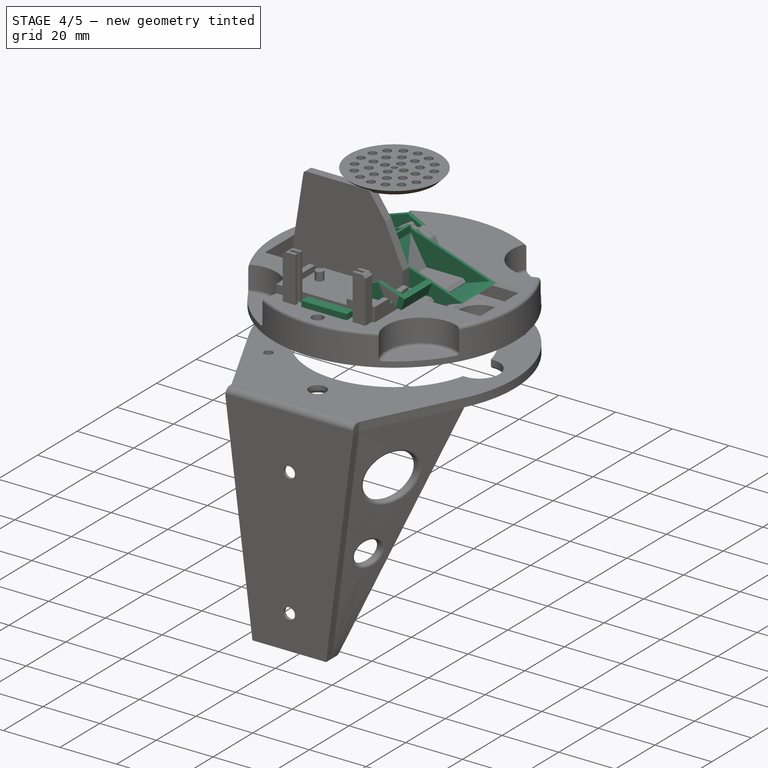
[diagram: stage 4 of 5 — iso view after this stage's code; geometry added in this stage tinted green]
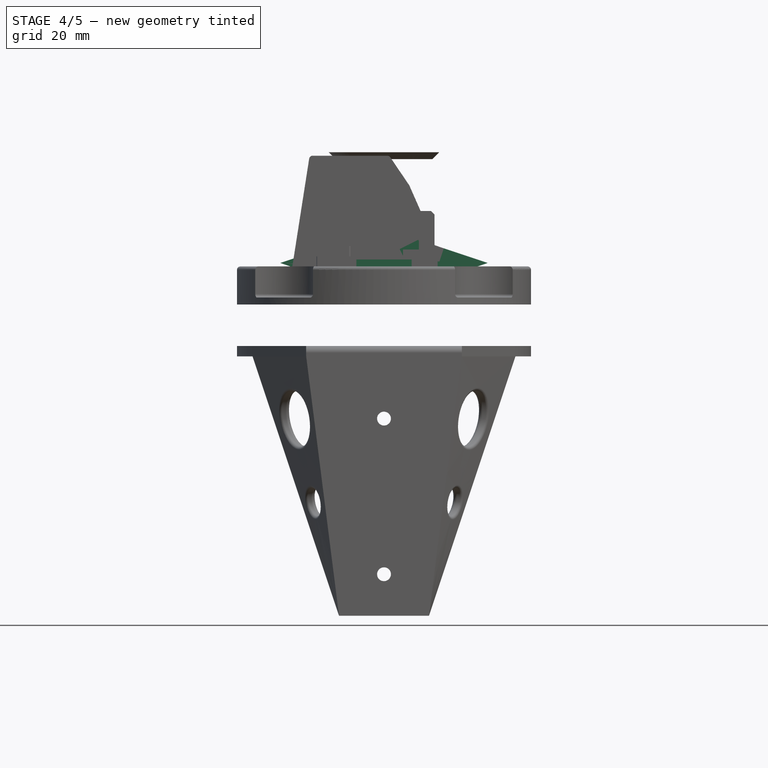
[diagram: stage 4 of 5 — front view after this stage's code; geometry added in this stage tinted green]
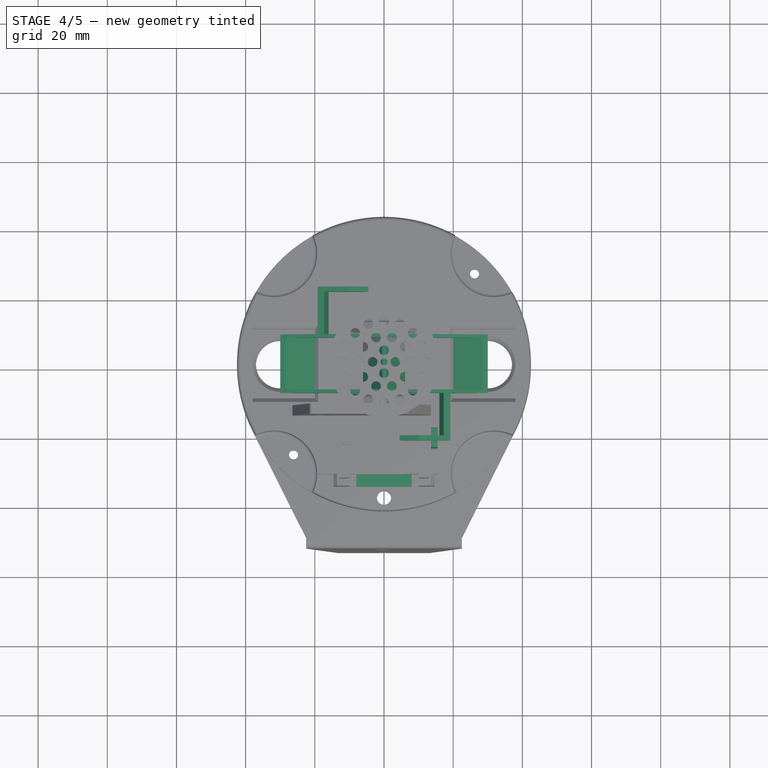
[diagram: stage 4 of 5 — top view after this stage's code; geometry added in this stage tinted green]
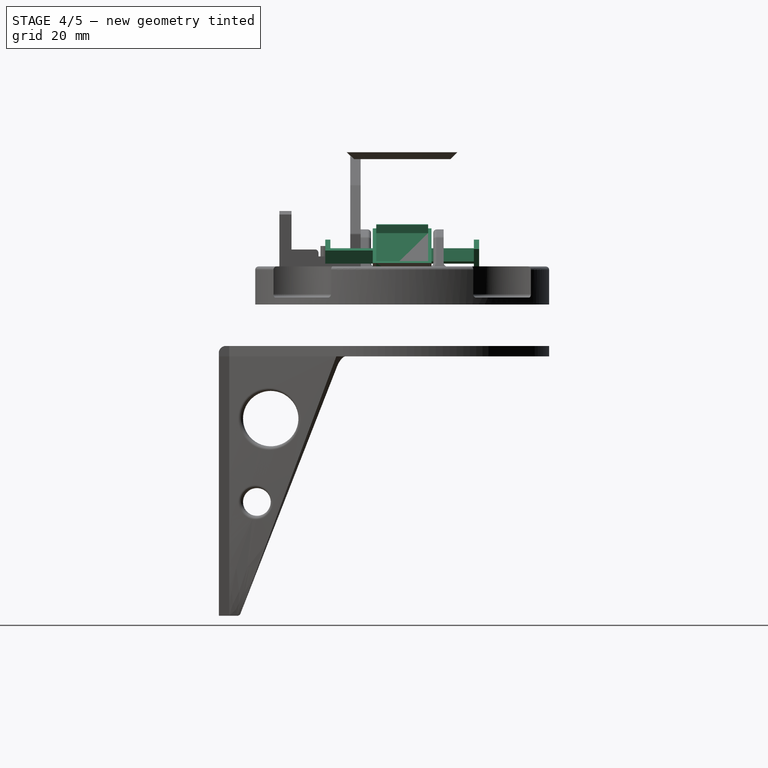
[diagram: stage 4 of 5 — right view after this stage's code; geometry added in this stage tinted green]
FEATURE [PartDesign::Body] Body006  label="Funnel"
  Group = -> [Sketch044,Revolution,Fillet009,Fillet010,Fillet011,Fillet012]
  Origin = -> Origin007
  Placement = pos=(0,0,2) rot=(0,0,1;0rad)
  Tip = -> Fillet012
FEATURE [Sketcher::SketchObject] Sketch051
  AttachmentOffset = pos=(0,0,7.5) rot=(0,0,1;0rad)
  MapMode = 5
  Placement = pos=(0,-7.5,-1.7e-15) rot=(1,0,0;1.5708rad)
  Support = -> [XZ_Plane008]
  sketch-geometry (10):
    g0: LineSegment StartX=0.962959 StartY=0.158748 StartZ=0 EndX=30 EndY=10 EndZ=0
    g1: LineSegment StartX=30 StartY=10 StartZ=0 EndX=28.4323 EndY=10.5245 EndZ=0
    g2: LineSegment StartX=28.4323 StartY=10.5245 StartZ=0 EndX=9 EndY=3.93854 EndZ=0
    g3: LineSegment StartX=-0.962959 StartY=0.158748 StartZ=0 EndX=-30 EndY=10 EndZ=0
    g4: LineSegment StartX=-30 StartY=10 StartZ=0 EndX=-28.4323 EndY=10.5245 EndZ=0
    g5: LineSegment StartX=-28.4323 StartY=10.5245 StartZ=0 EndX=-9 EndY=3.93854 EndZ=0
    g6: ArcOfCircle CenterX=0 CenterY=3 CenterZ=0 NormalX=0 NormalY=0 NormalZ=1 AngleXU=0 Radius=3 StartAngle=4.38562 EndAngle=5.03916
    g7: LineSegment [constr] StartX=28.4323 StartY=10.5245 StartZ=0 EndX=28.7533 EndY=9.57746 EndZ=0
    g8: LineSegment StartX=0 StartY=19.5 StartZ=0 EndX=-9 EndY=3.93854 EndZ=0
    g9: LineSegment StartX=0 StartY=19.5 StartZ=0 EndX=9 EndY=3.93854 EndZ=0
  constraints (24):
    c: Coincident(g0,g1)
    c: Coincident(g1,g2)
    c: Coincident(g3,g4)
    c: Coincident(g4,g5)
    c: Diameter(g6) = 6
    c: Tangent(g0,g6) = -1.5708
    c: Tangent(g3,g6) = 1.5708
    c: Symmetric(g0,g3,g-2)
    c: DistanceX(g-1,g0) = 30
    c: DistanceY(g-1,g0) = 10
    c: Symmetric(g1,g4,g-2)
    c: Parallel(g0,g2)
    c: Perpendicular(g0,g7)
    c: PointOnObject(g7,g0)
    c: Coincident(g1,g7)
    c: Distance(g7) = 1
    c: Angle(g1,g-1) = 0.322886
    c: PointOnObject(g8,g-2)
    c: Coincident(g9,g8)
    c: Symmetric(g8,g9,g-2)
    c: Coincident(g2,g9)
    c: Coincident(g5,g8)
    c: DistanceX(g5,g2) = 18
    c: DistanceY(g-1,g8) = 19.5
FEATURE [PartDesign::Pad] Pad023
  Length = 15
  Length2 = 100
  Placement = pos=(0,0,0) rot=(1,0,0;1.5708rad)
  Profile = -> Sketch051
  Reversed = true
  Type = 0
FEATURE [Sketcher::SketchObject] Sketch054
  MapMode = 5
  Placement = pos=(0,-7.5,-2e-15) rot=(1,0,0;1.5708rad)
  sketch-geometry (5):
    g0: LineSegment StartX=-0.5 StartY=6 StartZ=0 EndX=-0.5 EndY=21 EndZ=0
    g1: LineSegment StartX=-0.5 StartY=21 StartZ=0 EndX=0 EndY=21.1683 EndZ=0
    g2: LineSegment StartX=0 StartY=21.1683 StartZ=0 EndX=0.5 EndY=21 EndZ=0
    g3: LineSegment StartX=0.5 StartY=21 StartZ=0 EndX=0.5 EndY=6 EndZ=0
    g4: ArcOfCircle CenterX=2e-16 CenterY=3.04196 CenterZ=0 NormalX=0 NormalY=0 NormalZ=1 AngleXU=0 Radius=3 StartAngle=1.40335 EndAngle=1.73824
  constraints (15):
    c: Coincident(g0,g1)
    c: Coincident(g1,g2)
    c: Coincident(g2,g3)
    c: Coincident(g3,g4)
    c: Coincident(g0,g4)
    c: Vertical(g0)
    c: Vertical(g3)
    c: DistanceX(g0,g3) = 1
    c: Symmetric(g3,g0,g-2)
    c: PointOnObject(g1,g-2)
    c: Horizontal(g0,g2)
    c: Angle(g2,g-1) = 0.324631
    c: Diameter(g4) = 6
    c: DistanceY(g0,g0) = 15
    c: DistanceY(g-1,g0) = 6
FEATURE [PartDesign::Pad] Pad018
  BaseFeature = -> Pad023
  Length = 15
  Length2 = 100
  Placement = pos=(0,0,0) rot=(1,0,0;1.5708rad)
  Profile = -> Sketch054
  Reversed = true
  Type = 0
FEATURE [Sketcher::SketchObject] Sketch050
  ExternalGeometry = -> [Pad018]
  MapMode = 5
  Placement = pos=(0,-7.5,-1.7e-15) rot=(1,0,0;1.5708rad)
  Support = -> [Pad018]
  sketch-geometry (5):
    g0: ArcOfCircle CenterX=0 CenterY=3 CenterZ=0 NormalX=0 NormalY=0 NormalZ=1 AngleXU=0 Radius=3 StartAngle=4.38562 EndAngle=5.03916
    g1: LineSegment StartX=-0.962959 StartY=0.158748 StartZ=0 EndX=-30 EndY=10 EndZ=0
    g2: LineSegment StartX=-30 StartY=10 StartZ=0 EndX=0 EndY=20 EndZ=0
    g3: LineSegment StartX=0 StartY=20 StartZ=0 EndX=30 EndY=10 EndZ=0
    g4: LineSegment StartX=30 StartY=10 StartZ=0 EndX=0.962959 EndY=0.158748 EndZ=0
  constraints (12):
    c: Coincident(g1,g2)
    c: Coincident(g3,g4)
    c: Coincident(g1,g-3)
    c: Coincident(g3,g-4)
    c: Tangent(g0,g4) = 1.5708
    c: Tangent(g0,g1) = 1.5708
    c: Coincident(g2,g3)
    c: PointOnObject(g2,g-2)
    c: DistanceY(g-1,g2) = 20
    c: PointOnObject(g0,g-2)
    c: Diameter(g0) = 6
    c: DistanceY(g-1,g0) = 3
FEATURE [PartDesign::Pad] Pad020
  BaseFeature = -> Pad018
  Length = 1
  Length2 = 100
  Placement = pos=(0,0,0) rot=(1,0,0;1.5708rad)
  Profile = -> Sketch050
  Type = 0
FEATURE [Sketcher::SketchObject] Sketch053
  AttachmentOffset = pos=(0,0,-15) rot=(0,0,1;0rad)
  ExternalGeometry = -> [Pad018]
  MapMode = 5
  Placement = pos=(0,7.5,1.6e-15) rot=(1,0,0;1.5708rad)
  Support = -> [Pad018]
  sketch-geometry (5):
    g0: ArcOfCircle CenterX=0 CenterY=3 CenterZ=0 NormalX=0 NormalY=0 NormalZ=1 AngleXU=0 Radius=3 StartAngle=4.38562 EndAngle=5.03916
    g1: LineSegment StartX=-0.962959 StartY=0.158748 StartZ=0 EndX=-30 EndY=10 EndZ=0
    g2: LineSegment StartX=-30 StartY=10 StartZ=0 EndX=0 EndY=20 EndZ=0
    g3: LineSegment StartX=0 StartY=20 StartZ=0 EndX=30 EndY=10 EndZ=0
    g4: LineSegment StartX=30 StartY=10 StartZ=0 EndX=0.962959 EndY=0.158748 EndZ=0
  constraints (12):
    c: Coincident(g1,g2)
    c: Coincident(g3,g4)
    c: Coincident(g1,g-3)
    c: Coincident(g3,g-4)
    c: Tangent(g0,g4) = 1.5708
    c: Tangent(g0,g1) = 1.5708
    c: Coincident(g2,g3)
    c: PointOnObject(g2,g-2)
    c: DistanceY(g-1,g2) = 20
    c: DistanceY(g-1,g0) = 3
    c: Diameter(g0) = 6
    c: PointOnObject(g0,g-2)
FEATURE [PartDesign::Pad] Pad019
  BaseFeature = -> Pad020
  Length = 1
  Length2 = 100
  Placement = pos=(0,0,0) rot=(1,0,0;1.5708rad)
  Profile = -> Sketch053
  Reversed = true
  Type = 0
FEATURE [Sketcher::SketchObject] Sketch049
  MapMode = 5
  Placement = pos=(0,-8.5,1.9e-15) rot=(1,0,0;1.5708rad)
  Support = -> [Pad019]
  sketch-geometry (1):
    g0: Circle CenterX=0 CenterY=8 CenterZ=0 NormalX=0 NormalY=0 NormalZ=1 AngleXU=0 Radius=1.4
  constraints (3):
    c: PointOnObject(g0,g-2)
    c: Diameter(g0) = 2.8
    c: DistanceY(g-1,g0) = 8
FEATURE [PartDesign::Pocket] Pocket023
  BaseFeature = -> Pad019
  Length = 5
  Length2 = 100
  Placement = pos=(0,0,0) rot=(1,0,0;1.5708rad)
  Profile = -> Sketch049
  Type = 1
FEATURE [Sketcher::SketchObject] Sketch056
  ExternalGeometry = -> [Pad]
  MapMode = 5
  Placement = pos=(0,0,9) rot=(0,0,1;0rad)
  Support = -> [Pad]
  sketch-geometry (4):
    g0: LineSegment StartX=8 StartY=-32 StartZ=0 EndX=-8 EndY=-32 EndZ=0
    g1: LineSegment StartX=-8 StartY=-32 StartZ=0 EndX=-8 EndY=-35.5 EndZ=0
    g2: LineSegment StartX=-8 StartY=-35.5 StartZ=0 EndX=8 EndY=-35.5 EndZ=0
    g3: LineSegment StartX=8 StartY=-35.5 StartZ=0 EndX=8 EndY=-32 EndZ=0
  constraints (11):
    c: Coincident(g0,g1)
    c: Coincident(g1,g2)
    c: Coincident(g2,g3)
    c: Coincident(g3,g0)
    c: Horizontal(g0)
    c: Vertical(g1)
    c: Vertical(g3)
    c: Horizontal(g0,g-3)
    c: Horizontal(g2,g-4)
    c: Symmetric(g2,g1,g-2)
    c: DistanceX(g2,g2) = 16
FEATURE [PartDesign::Pad] Pad024
  BaseFeature = -> Pad
  Length = 2
  Length2 = 100
  Profile = -> Sketch056
  Type = 0
FEATURE [PartDesign::Fillet] Fillet
  Base = -> Pad024 [Edge199,Edge206,Edge289,Edge285]
  BaseFeature = -> Pad024
  Radius = 1
FEATURE [PartDesign::Fillet] Fillet013
  Base = -> Fillet [Edge246,Edge108,Edge245,Edge102]
  BaseFeature = -> Fillet
  Radius = 1
FEATURE [PartDesign::Fillet] Fillet014
  Base = -> Fillet013 [Edge115,Edge113,Edge111,Edge108]
  BaseFeature = -> Fillet013
  Radius = 1
FEATURE [Sketcher::SketchObject] Sketch057
  ExternalGeometry = -> [Pocket016]
  MapMode = 5
  Placement = pos=(0,0,1.8e-15) rot=(0,0,1;0rad)
  Support = -> [Pocket016]
  sketch-geometry (2):
    g0: LineSegment [constr] StartX=0 StartY=0 StartZ=0 EndX=26.163 EndY=26.163 EndZ=0
    g1: Circle CenterX=26.163 CenterY=26.163 CenterZ=0 NormalX=0 NormalY=0 NormalZ=1 AngleXU=0 Radius=1.3
  constraints (5):
    c: Coincident(g0,g-1)
    c: Distance(g0) = 37
    c: Angle(g-1,g0) = 0.785398
    c: Coincident(g1,g0)
    c: Equal(g1,g-3)
FEATURE [PartDesign::Pocket] Pocket
  BaseFeature = -> Fillet014
  Length = 5
  Length2 = 100
  Profile = -> Sketch057
  Type = 2
FEATURE [PartDesign::Fillet] Fillet015
  Base = -> Pocket [Edge266]
  BaseFeature = -> Pocket
  Radius = 1
FEATURE [PartDesign::Body] Body003  label="Case"
  Group = -> [Sketch015,Revolution001,Fillet007,Sketch058,Pocket024,Fillet016,Fillet017,Fillet018,Sketch059,Pad025,Sketch060,Pad026]
  Origin = -> Origin003
  Tip = -> Pad026
FEATURE [Sketcher::SketchObject] Sketch061
  ExternalGeometry = -> [Pocket023]
  MapMode = 5
  Placement = pos=(0,-8.5,1.9e-15) rot=(1,0,0;1.5708rad)
  Support = -> [Pocket023]
  sketch-geometry (4):
    g0: LineSegment StartX=17.2876 StartY=14.2375 StartZ=0 EndX=16.0227 EndY=10.4427 EndZ=0
    g1: LineSegment StartX=16.0227 StartY=10.4427 StartZ=0 EndX=17.9201 EndY=9.81026 EndZ=0
    g2: LineSegment StartX=17.9201 StartY=9.81026 StartZ=0 EndX=19.185 EndY=13.605 EndZ=0
    g3: LineSegment StartX=19.185 StartY=13.605 StartZ=0 EndX=17.2876 EndY=14.2375 EndZ=0
  constraints (12):
    c: PointOnObject(g0,g-3)
    c: Coincident(g0,g1)
    c: Coincident(g1,g2)
    c: PointOnObject(g2,g-3)
    c: Coincident(g2,g3)
    c: Coincident(g3,g0)
    c: Perpendicular(g2,g-3)
    c: Perpendicular(g-3,g0)
    c: Perpendicular(g1,g2)
    c: Distance(g3) = 2
    c: Distance(g0) = 4
    c: Distance(g-3,g2) = 11.4
FEATURE [PartDesign::Pad] Pad027
  BaseFeature = -> Pocket023
  Length = 13.75
  Length2 = 100
  Placement = pos=(0,0,0) rot=(1,0,0;1.5708rad)
  Profile = -> Sketch061
  Type = 0
FEATURE [Sketcher::SketchObject] Sketch062
  ExternalGeometry = -> [Pad027]
  MapMode = 5
  Placement = pos=(3.1e-15,-22.25,9.3e-15) rot=(1,0,0;1.5708rad)
  Support = -> [Pad027]
  sketch-geometry (8):
    g0: LineSegment StartX=4.52576 StartY=14.0432 StartZ=0 EndX=9.89232 EndY=16.7265 EndZ=0
    g1: LineSegment StartX=9.89232 StartY=16.7265 StartZ=0 EndX=17.2876 EndY=14.2375 EndZ=0
    g2: LineSegment StartX=16.0227 StartY=10.4427 StartZ=0 EndX=13.0228 EndY=10.4655 EndZ=0
    g3: LineSegment StartX=13.0228 StartY=10.4655 StartZ=0 EndX=7.65626 EndY=7.78221 EndZ=0
    g4: LineSegment StartX=7.65626 StartY=7.78221 StartZ=0 EndX=4.52576 EndY=14.0432 EndZ=0
    g5: LineSegment StartX=16.0227 StartY=10.4427 StartZ=0 EndX=17.9201 EndY=9.81026 EndZ=0
    g6: LineSegment StartX=17.9201 StartY=9.81026 StartZ=0 EndX=19.185 EndY=13.605 EndZ=0
    g7: LineSegment StartX=19.185 StartY=13.605 StartZ=0 EndX=17.2876 EndY=14.2375 EndZ=0
  constraints (21):
    c: Coincident(g0,g1)
    c: Coincident(g1,g-4)
    c: Coincident(g2,g-4)
    c: Coincident(g3,g2)
    c: Coincident(g4,g3)
    c: Coincident(g4,g0)
    c: Coincident(g2,g5)
    c: Coincident(g5,g-3)
    c: Coincident(g5,g6)
    c: Coincident(g6,g-3)
    c: Coincident(g6,g7)
    c: Coincident(g7,g1)
    c: Equal(g3,g0)
    c: Equal(g3,g0)
    c: Perpendicular(g4,g3)
    c: Distance(g3) = 6
    c: Parallel(g3,g0)
    c: Distance(g4) = 7
    c: Angle(g3,g2) = 2.67035
    c: Distance(g2) = 3
    c: Angle(g7,g3) = 0.785398
FEATURE [PartDesign::Pad] Pad028
  BaseFeature = -> Pad027
  Length = 1.5
  Length2 = 100
  Placement = pos=(0,0,0) rot=(1,0,0;1.5708rad)
  Profile = -> Sketch062
  Reversed = true
  Type = 0
FEATURE [Sketcher::SketchObject] Sketch063
  ExternalGeometry = -> [Pad028]
  MapMode = 5
  Placement = pos=(0,8.5,-1.9e-15) rot=(-1,0,0;1.5708rad)
  Support = -> [Pad028]
  sketch-geometry (4):
    g0: LineSegment StartX=-19.185 StartY=-13.605 StartZ=0 EndX=-17.9201 EndY=-9.81026 EndZ=0
    g1: LineSegment StartX=-17.9201 StartY=-9.81026 StartZ=0 EndX=-16.0227 EndY=-10.4427 EndZ=0
    g2: LineSegment StartX=-16.0227 StartY=-10.4427 StartZ=0 EndX=-17.2876 EndY=-14.2375 EndZ=0
    g3: LineSegment StartX=-17.2876 StartY=-14.2375 StartZ=0 EndX=-19.185 EndY=-13.605 EndZ=0
  constraints (12):
    c: PointOnObject(g0,g-3)
    c: Coincident(g0,g1)
    c: Coincident(g1,g2)
    c: PointOnObject(g2,g-3)
    c: Coincident(g2,g3)
    c: Coincident(g3,g0)
    c: Perpendicular(g2,g-3)
    c: Perpendicular(g-3,g0)
    c: Perpendicular(g1,g2)
    c: Distance(g1) = 2
    c: Distance(g0) = 4
    c: Distance(g-3,g0) = 11.4
FEATURE [PartDesign::Pad] Pad029
  BaseFeature = -> Pad028
  Length = 13.75
  Length2 = 100
  Placement = pos=(0,0,0) rot=(1,0,0;1.5708rad)
  Profile = -> Sketch063
  Type = 0
FEATURE [Sketcher::SketchObject] Sketch064
  ExternalGeometry = -> [Pad029]
  MapMode = 5
  Placement = pos=(-1.56e-14,22.25,-1.56e-14) rot=(-1,0,0;1.5708rad)
  Support = -> [Pad029]
  sketch-geometry (8):
    g0: LineSegment StartX=-17.2876 StartY=-14.2375 StartZ=0 EndX=-19.185 EndY=-13.605 EndZ=0
    g1: LineSegment StartX=-19.185 StartY=-13.605 StartZ=0 EndX=-17.9201 EndY=-9.81026 EndZ=0
    g2: LineSegment StartX=-17.9201 StartY=-9.81026 StartZ=0 EndX=-16.0227 EndY=-10.4427 EndZ=0
    g3: LineSegment StartX=-16.0227 StartY=-10.4427 StartZ=0 EndX=-13.0228 EndY=-10.4655 EndZ=0
    g4: LineSegment StartX=-13.0228 StartY=-10.4655 StartZ=0 EndX=-7.65626 EndY=-7.78221 EndZ=0
    g5: LineSegment StartX=-7.65626 StartY=-7.78221 StartZ=0 EndX=-4.52576 EndY=-14.0432 EndZ=0
    g6: LineSegment StartX=-4.52576 StartY=-14.0432 StartZ=0 EndX=-9.89232 EndY=-16.7265 EndZ=0
    g7: LineSegment StartX=-9.89232 StartY=-16.7265 StartZ=0 EndX=-17.2876 EndY=-14.2375 EndZ=0
  constraints (20):
    c: Coincident(g-4,g0)
    c: Coincident(g0,g-4)
    c: Coincident(g0,g1)
    c: Coincident(g1,g-3)
    c: Coincident(g1,g2)
    c: Coincident(g2,g-3)
    c: Coincident(g2,g3)
    c: Coincident(g3,g4)
    c: Coincident(g4,g5)
    c: Coincident(g5,g6)
    c: Coincident(g6,g7)
    c: Coincident(g7,g0)
    c: Equal(g6,g4)
    c: Parallel(g6,g4)
    c: Perpendicular(g5,g4)
    c: Distance(g5) = 7
    c: Distance(g4) = 6
    c: Angle(g0,g4) = 0.785398
    c: Angle(g4,g3) = 2.67035
    c: Distance(g3) = 3
FEATURE [PartDesign::Pad] Pad030
  BaseFeature = -> Pad029
  Length = 1.5
  Length2 = 100
  Placement = pos=(0,0,0) rot=(1,0,0;1.5708rad)
  Profile = -> Sketch064
  Reversed = true
  Type = 0
FEATURE [PartDesign::Body] Body007  label="BucketV3"
  Group = -> [Sketch051,Pad023,Sketch054,Pad018,Sketch050,Pad020,Sketch053,Pad019,Sketch049,Pocket023,Sketch061,Pad027,Sketch062,Pad028,Sketch063,Pad029,Sketch064,Pad030,Fillet019,Fillet020]
  Origin = -> Origin008
  Placement = pos=(-0.0389075,2e-15,-0.0991515) rot=(0,0,1;0rad)
  Tip = -> Fillet020
FEATURE [Sketcher::SketchObject] Sketch065
  ExternalGeometry = -> [Fillet015]
  MapMode = 5
  Placement = pos=(15.5,0,0) rot=(0.57735,0.57735,0.57735;2.0944rad)
  Support = -> [Fillet015]
  sketch-geometry (4):
    g0: LineSegment StartX=-24.2 StartY=13.9 StartZ=0 EndX=-18.7 EndY=13.9 EndZ=0
    g1: LineSegment StartX=-18.7 StartY=13.9 StartZ=0 EndX=-18.7 EndY=11.9 EndZ=0
    g2: LineSegment StartX=-18.7 StartY=11.9 StartZ=0 EndX=-24.2 EndY=11.9 EndZ=0
    g3: LineSegment StartX=-24.2 StartY=11.9 StartZ=0 EndX=-24.2 EndY=13.9 EndZ=0
  constraints (12):
    c: Coincident(g0,g1)
    c: Coincident(g1,g2)
    c: Coincident(g2,g3)
    c: Coincident(g3,g0)
    c: Horizontal(g0)
    c: Horizontal(g2)
    c: Vertical(g1)
    c: Vertical(g3)
    c: PointOnObject(g0,g-4)
    c: DistanceX(g0,g0) = 5.5
    c: DistanceX(g0,g-4) = 3.75
    c: DistanceY(g1,g1) = 2
FEATURE [PartDesign::Pocket] Pocket025
  BaseFeature = -> Fillet015
  Length = 5
  Length2 = 100
  Profile = -> Sketch065
  Type = 2
FEATURE [PartDesign::Fillet] Fillet021
  Base = -> Pocket025 [Edge377,Edge376]
  BaseFeature = -> Pocket025
  Radius = 1
FEATURE [PartDesign::Chamfer] Chamfer006
  Base = -> Fillet021 [Edge258,Edge225]
  BaseFeature = -> Fillet021
  Size = 1
FEATURE [PartDesign::Fillet] Fillet022
  Base = -> Chamfer006 [Edge355]
  BaseFeature = -> Chamfer006
  Radius = 1
FEATURE [PartDesign::Fillet] Fillet023
  Base = -> Fillet022 [Edge264]
  BaseFeature = -> Fillet022
  Radius = 1
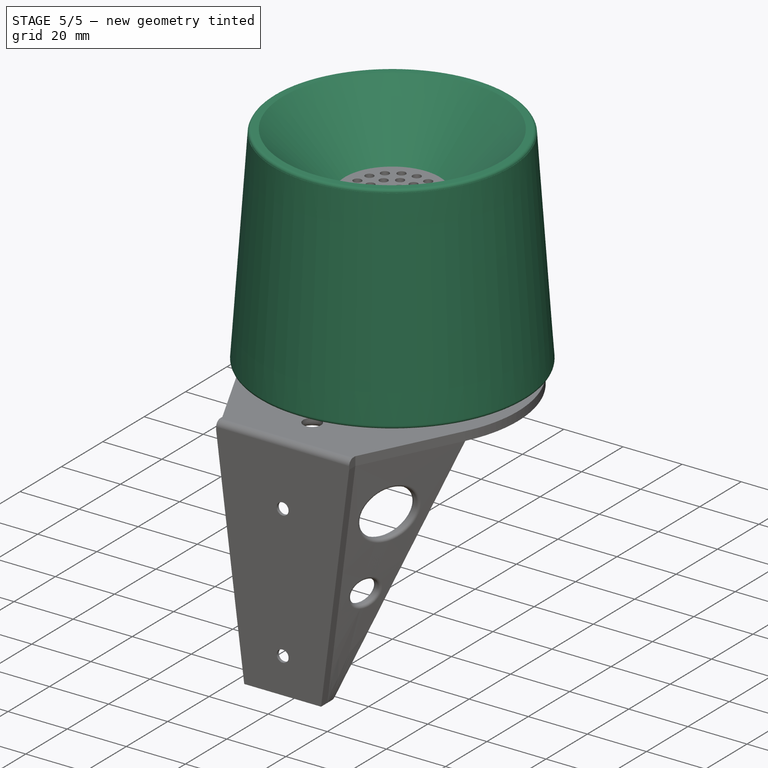
[diagram: stage 5 of 5 — iso view after this stage's code; geometry added in this stage tinted green]
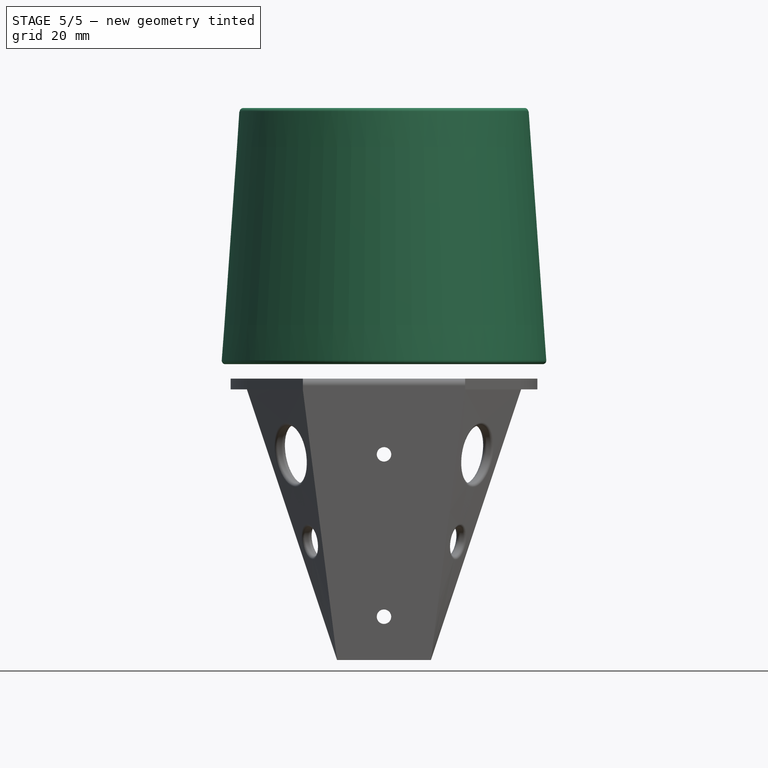
[diagram: stage 5 of 5 — front view after this stage's code; geometry added in this stage tinted green]
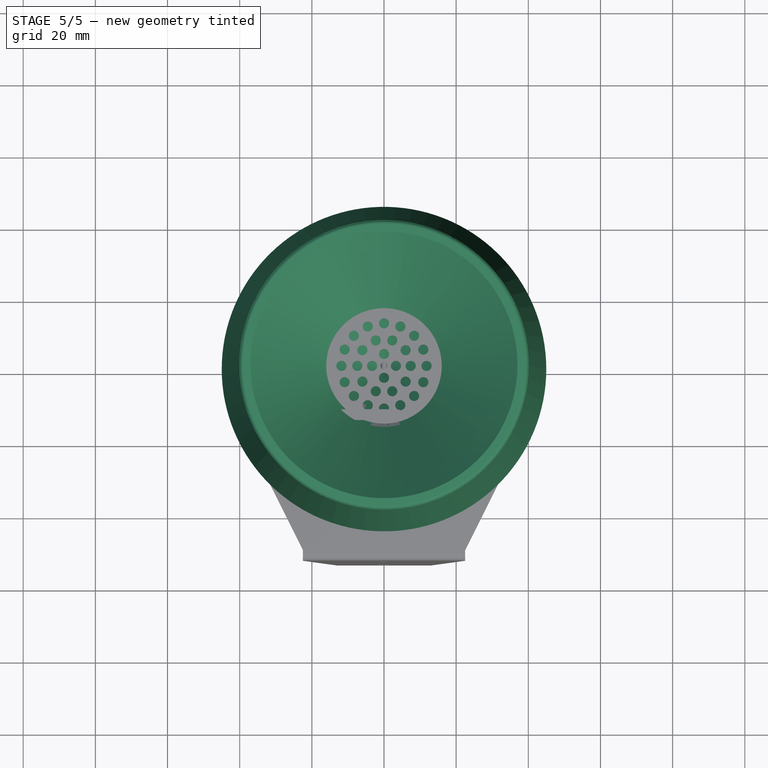
[diagram: stage 5 of 5 — top view after this stage's code; geometry added in this stage tinted green]
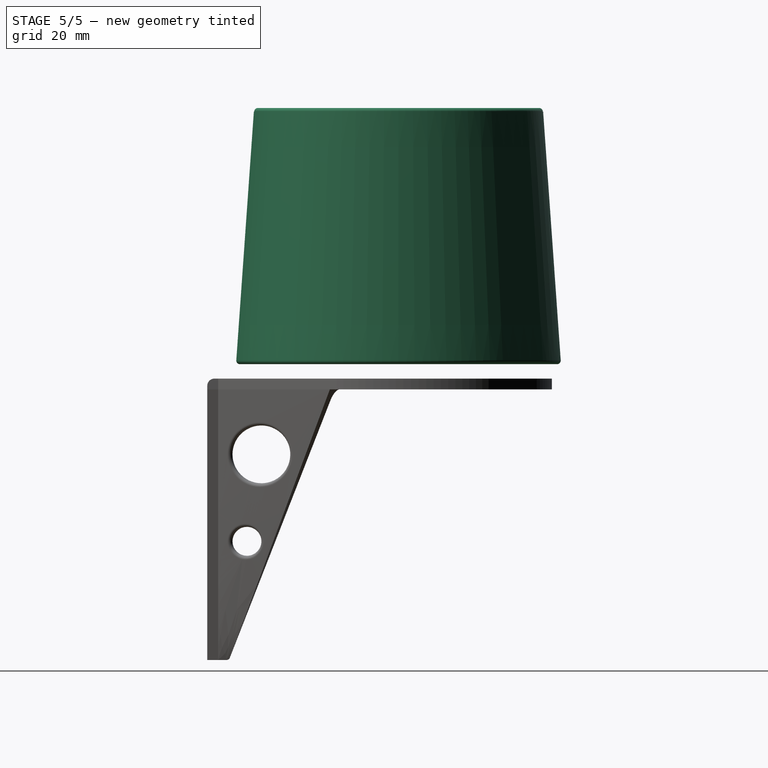
[diagram: stage 5 of 5 — right view after this stage's code; geometry added in this stage tinted green]
FEATURE [Sketcher::SketchObject] Sketch015
  MapMode = 5
  Placement = pos=(0,0,0) rot=(1,0,0;1.5708rad)
  Support = -> [XZ_Plane003]
  sketch-geometry (8):
    g0: LineSegment StartX=40.1 StartY=60 StartZ=0 EndX=45.05 EndY=-10 EndZ=0
    g1: LineSegment StartX=45.05 StartY=-10 StartZ=0 EndX=42.55 EndY=-10 EndZ=0
    g2: LineSegment StartX=42.55 StartY=-10 StartZ=0 EndX=42.55 EndY=-3 EndZ=0
    g3: LineSegment StartX=42.55 StartY=-3 StartZ=0 EndX=40.05 EndY=-3 EndZ=0
    g4: LineSegment StartX=40.05 StartY=-3 StartZ=0 EndX=35.1 EndY=57 EndZ=0
    g5: LineSegment StartX=35.1 StartY=57 StartZ=0 EndX=37.6 EndY=57 EndZ=0
    g6: LineSegment StartX=37.6 StartY=57 StartZ=0 EndX=37.6 EndY=60 EndZ=0
    g7: LineSegment StartX=37.6 StartY=60 StartZ=0 EndX=40.1 EndY=60 EndZ=0
  constraints (24):
    c: Coincident(g0,g1)
    c: Horizontal(g1)
    c: Coincident(g1,g2)
    c: Vertical(g2)
    c: Coincident(g2,g3)
    c: Horizontal(g3)
    c: Coincident(g3,g4)
    c: Coincident(g4,g5)
    c: Horizontal(g5)
    c: Coincident(g5,g6)
    c: Vertical(g6)
    c: Coincident(g6,g7)
    c: Coincident(g7,g0)
    c: Horizontal(g7)
    c: DistanceX(g-1,g1) = 42.55
    c: DistanceX(g3,g3) = 2.5
    c: Equal(g1,g3)
    c: Equal(g3,g5)
    c: Equal(g7,g5)
    c: DistanceY(g2,g-1) = 3
    c: DistanceY(g6,g6) = 3
    c: DistanceY(g1,g2) = 7
    c: DistanceX(g-1,g5) = 37.6
    c: DistanceY(g-1,g5) = 57
FEATURE [PartDesign::Revolution] Revolution001
  Angle = 360
  Axis = (0,-2e-16,1)
  Base = (0,0,0)
  Placement = pos=(0,0,0) rot=(1,0,0;1.5708rad)
  Profile = -> Sketch015
  ReferenceAxis = -> Sketch015 [V_Axis]
  Reversed = true
FEATURE [Sketcher::SketchObject] Sketch016
  AttachmentOffset = pos=(0,0,-1.6) rot=(0,0,1;0rad)
  MapMode = 5
  Placement = pos=(0,0,-1.6) rot=(0,0,1;0rad)
  Support = -> [XY_Plane004]
  sketch-geometry (4):
    g0: LineSegment StartX=0 StartY=0 StartZ=0 EndX=31.3 EndY=0 EndZ=0
    g1: LineSegment StartX=31.3 StartY=0 StartZ=0 EndX=31.3 EndY=14.4 EndZ=0
    g2: LineSegment StartX=31.3 StartY=14.4 StartZ=0 EndX=0 EndY=14.4 EndZ=0
    g3: LineSegment StartX=0 StartY=14.4 StartZ=0 EndX=0 EndY=0 EndZ=0
  constraints (11):
    c: Coincident(g0,g1)
    c: Coincident(g1,g2)
    c: Coincident(g2,g3)
    c: Coincident(g3,g0)
    c: Horizontal(g0)
    c: Horizontal(g2)
    c: Vertical(g1)
    c: Vertical(g3)
    c: Coincident(g0,g-1)
    c: DistanceX(g2,g2) = 31.3
    c: DistanceY(g3,g3) = 14.4
FEATURE [PartDesign::Pad] Pad007
  Length = 1.6
  Length2 = 100
  Profile = -> Sketch016
  Type = 0
FEATURE [Sketcher::SketchObject] Sketch017
  MapMode = 5
  Placement = pos=(0,0,-2e-16) rot=(0,0,1;0rad)
  Support = -> [Pad007]
  sketch-geometry (1):
    g0: Circle CenterX=24.4 CenterY=7.2 CenterZ=0 NormalX=0 NormalY=0 NormalZ=1 AngleXU=0 Radius=1.5
  constraints (3):
    c: DistanceY(g-1,g0) = 7.2
    c: DistanceX(g-1,g0) = 24.4
    c: Diameter(g0) = 3
FEATURE [PartDesign::Pocket] Pocket006
  BaseFeature = -> Pad007
  Length = 5
  Length2 = 100
  Profile = -> Sketch017
  Type = 2
FEATURE [Sketcher::SketchObject] Sketch018
  MapMode = 5
  Placement = pos=(0,0,-2e-16) rot=(0,0,1;0rad)
  Support = -> [Pocket006]
  sketch-geometry (4):
    g0: LineSegment StartX=0.85 StartY=13.2 StartZ=0 EndX=6.85 EndY=13.2 EndZ=0
    g1: LineSegment StartX=6.85 StartY=13.2 StartZ=0 EndX=6.85 EndY=0 EndZ=0
    g2: LineSegment StartX=6.85 StartY=0 StartZ=0 EndX=0.85 EndY=0 EndZ=0
    g3: LineSegment StartX=0.85 StartY=0 StartZ=0 EndX=0.85 EndY=13.2 EndZ=0
  constraints (12):
    c: Coincident(g0,g1)
    c: Coincident(g1,g2)
    c: Coincident(g2,g3)
    c: Coincident(g3,g0)
    c: Horizontal(g0)
    c: Horizontal(g2)
    c: Vertical(g1)
    c: Vertical(g3)
    c: DistanceX(g0,g0) = 6
    c: DistanceY(g3,g3) = 13.2
    c: Horizontal(g2,g-1)
    c: DistanceX(g-1,g2) = 0.85
FEATURE [PartDesign::Pad] Pad008
  BaseFeature = -> Pocket006
  Length = 10.2
  Length2 = 100
  Profile = -> Sketch018
  Type = 0
FEATURE [Sketcher::SketchObject] Sketch019
  ExternalGeometry = -> [Pad008]
  MapMode = 5
  Placement = pos=(0,0,10.2) rot=(0,0,1;0rad)
  Support = -> [Pad008]
  sketch-geometry (4):
    g0: LineSegment StartX=0.85 StartY=9.05 StartZ=0 EndX=6.85 EndY=9.05 EndZ=0
    g1: LineSegment StartX=6.85 StartY=9.05 StartZ=0 EndX=6.85 EndY=4.05 EndZ=0
    g2: LineSegment StartX=6.85 StartY=4.05 StartZ=0 EndX=0.85 EndY=4.05 EndZ=0
    g3: LineSegment StartX=0.85 StartY=4.05 StartZ=0 EndX=0.85 EndY=9.05 EndZ=0
  constraints (12):
    c: Coincident(g0,g1)
    c: Coincident(g1,g2)
    c: Coincident(g2,g3)
    c: Coincident(g3,g0)
    c: Horizontal(g0)
    c: Horizontal(g2)
    c: Vertical(g1)
    c: Vertical(g3)
    c: PointOnObject(g0,g-4)
    c: PointOnObject(g1,g-3)
    c: DistanceY(g3,g3) = 5
    c: DistanceY(g-4,g2) = 4.05
FEATURE [PartDesign::Pocket] Pocket007
  BaseFeature = -> Pad008
  Length = 8.1
  Length2 = 100
  Profile = -> Sketch019
  Type = 0
FEATURE [PartDesign::Fillet] Fillet007
  Base = -> Revolution001 [Edge2]
  BaseFeature = -> Revolution001
  Placement = pos=(0,0,0) rot=(1,0,0;1.5708rad)
  Radius = 1
FEATURE [Sketcher::SketchObject] Sketch044
  MapMode = 5
  Placement = pos=(0,0,0) rot=(1,0,0;1.5708rad)
  Support = -> [XZ_Plane007]
  sketch-geometry (10):
    g0: LineSegment StartX=40 StartY=61 StartZ=0 EndX=40 EndY=58 EndZ=0
    g1: LineSegment StartX=40 StartY=58 StartZ=0 EndX=37.5 EndY=58 EndZ=0
    g2: LineSegment StartX=37.5 StartY=58 StartZ=0 EndX=37.5 EndY=55 EndZ=0
    g3: LineSegment StartX=37.5 StartY=55 StartZ=0 EndX=35 EndY=55 EndZ=0
    g4: LineSegment StartX=1.5 StartY=25.5 StartZ=0 EndX=1.5 EndY=21 EndZ=0
    g5: LineSegment StartX=1.5 StartY=21 StartZ=0 EndX=3.5 EndY=21 EndZ=0
    g6: LineSegment StartX=3.5 StartY=24 StartZ=0 EndX=35 EndY=55 EndZ=0
    g7: LineSegment StartX=40 StartY=61 StartZ=0 EndX=37 EndY=61 EndZ=0
    g8: LineSegment StartX=37 StartY=61 StartZ=0 EndX=1.5 EndY=25.5 EndZ=0
    g9: LineSegment StartX=3.5 StartY=24 StartZ=0 EndX=3.5 EndY=21 EndZ=0
  constraints (30):
    c: Vertical(g0)
    c: Coincident(g0,g1)
    c: Horizontal(g1)
    c: Coincident(g1,g2)
    c: Vertical(g2)
    c: Coincident(g2,g3)
    c: Horizontal(g3)
    c: Vertical(g4)
    c: Coincident(g4,g5)
    c: Horizontal(g5)
    c: Coincident(g6,g3)
    c: Coincident(g0,g7)
    c: Coincident(g7,g8)
    c: Horizontal(g7)
    c: DistanceX(g-1,g4) = 1.5
    c: DistanceY(g-1,g4) = 21
    c: Coincident(g8,g4)
    c: DistanceX(g5,g5) = 2
    c: DistanceY(g4,g4) = 4.5
    c: DistanceX(g-1,g0) = 40
    c: DistanceY(g0,g0) = 3
    c: Equal(g0,g2)
    c: DistanceX(g1,g1) = 2.5
    c: Equal(g1,g3)
    c: DistanceX(g7,g7) = 3
    c: DistanceY(g4,g7) = 40
    c: Coincident(g9,g6)
    c: Coincident(g9,g5)
    c: Vertical(g9)
    c: DistanceY(g9,g9) = 3
FEATURE [PartDesign::Revolution] Revolution
  Angle = 360
  Axis = (0,2e-16,1)
  Base = (0,0,0)
  Placement = pos=(0,0,0) rot=(1,0,0;1.5708rad)
  Profile = -> Sketch044
  ReferenceAxis = -> Sketch044 [V_Axis]
  Reversed = true
FEATURE [PartDesign::Fillet] Fillet009
  Base = -> Revolution [Edge14]
  BaseFeature = -> Revolution
  Placement = pos=(0,0,0) rot=(1,0,0;1.5708rad)
  Radius = 1
FEATURE [PartDesign::Fillet] Fillet010
  Base = -> Fillet009 [Edge11]
  BaseFeature = -> Fillet009
  Placement = pos=(0,0,0) rot=(1,0,0;1.5708rad)
  Radius = 1
FEATURE [PartDesign::Fillet] Fillet011
  Base = -> Fillet010 [Edge18]
  BaseFeature = -> Fillet010
  Placement = pos=(0,0,0) rot=(1,0,0;1.5708rad)
  Radius = 1
FEATURE [PartDesign::Fillet] Fillet012
  Base = -> Fillet011 [Edge8]
  BaseFeature = -> Fillet011
  Placement = pos=(0,0,0) rot=(1,0,0;1.5708rad)
  Radius = 1
FEATURE [Sketcher::SketchObject] Sketch058
  AttachmentOffset = pos=(0,0,33.5) rot=(0,0,1;0rad)
  MapMode = 5
  Placement = pos=(0,-33.5,-7.4e-15) rot=(1,0,0;1.5708rad)
  Support = -> [XZ_Plane003]
  sketch-geometry (4):
    g0: LineSegment StartX=-14 StartY=38 StartZ=0 EndX=14 EndY=38 EndZ=0
    g1: LineSegment StartX=14 StartY=38 StartZ=0 EndX=14 EndY=23 EndZ=0
    g2: LineSegment StartX=14 StartY=23 StartZ=0 EndX=-14 EndY=23 EndZ=0
    g3: LineSegment StartX=-14 StartY=23 StartZ=0 EndX=-14 EndY=38 EndZ=0
  constraints (11):
    c: Coincident(g0,g1)
    c: Coincident(g1,g2)
    c: Coincident(g2,g3)
    c: Coincident(g3,g0)
    c: Horizontal(g0)
    c: Vertical(g1)
    c: Vertical(g3)
    c: DistanceX(g0,g0) = 28
    c: Symmetric(g1,g2,g-2)
    c: DistanceY(g3,g3) = 15
    c: DistanceY(g-1,g0) = 38
FEATURE [PartDesign::Pocket] Pocket024
  BaseFeature = -> Fillet007
  Length = 4
  Length2 = 100
  Placement = pos=(0,0,0) rot=(1,0,0;1.5708rad)
  Profile = -> Sketch058
  Reversed = true
  Type = 0
FEATURE [PartDesign::Fillet] Fillet016
  Base = -> Pocket024 [Edge16,Edge15,Edge20]
  BaseFeature = -> Pocket024
  Placement = pos=(0,0,0) rot=(1,0,0;1.5708rad)
  Radius = 1
FEATURE [PartDesign::Fillet] Fillet017
  Base = -> Fillet016 [Edge2,Edge6]
  BaseFeature = -> Fillet016
  Placement = pos=(0,0,0) rot=(1,0,0;1.5708rad)
  Radius = 0.5
FEATURE [PartDesign::Fillet] Fillet018
  Base = -> Fillet017 [Edge30,Edge33]
  BaseFeature = -> Fillet017
  Placement = pos=(0,0,0) rot=(1,0,0;1.5708rad)
  Radius = 1
FEATURE [Sketcher::SketchObject] Sketch059
  ExternalGeometry = -> [Fillet018]
  MapMode = 5
  Placement = pos=(0,0,-3) rot=(1,0,0;3.14159rad)
  Support = -> [Fillet018]
  sketch-geometry (5):
    g0: LineSegment [constr] StartX=0 StartY=0 StartZ=0 EndX=31.8198 EndY=31.8198 EndZ=0
    g1: ArcOfCircle CenterX=31.8198 CenterY=31.8198 CenterZ=0 NormalX=0 NormalY=0 NormalZ=1 AngleXU=0 Radius=12.45 StartAngle=2.69225 EndAngle=2.8961
    g2: ArcOfCircle CenterX=31.8198 CenterY=31.8198 CenterZ=0 NormalX=0 NormalY=0 NormalZ=1 AngleXU=0 Radius=12.45 StartAngle=4.95788 EndAngle=5.16173
    g3: ArcOfCircle CenterX=0 CenterY=0 CenterZ=0 NormalX=0 NormalY=0 NormalZ=1 AngleXU=0 Radius=42.55 StartAngle=0.505529 EndAngle=1.06527
    g4: ArcOfCircle CenterX=0 CenterY=0 CenterZ=0 NormalX=0 NormalY=0 NormalZ=1 AngleXU=0 Radius=40.05 StartAngle=0.51549 EndAngle=1.05531
  constraints (15):
    c: Coincident(g0,g-1)
    c: Angle(g-1,g0) = 0.785398
    c: Distance(g0) = 45
    c: Coincident(g1,g0)
    c: PointOnObject(g1,g-4)
    c: PointOnObject(g1,g-3)
    c: Diameter(g1) = 24.9
    c: Coincident(g2,g1)
    c: Coincident(g3,g-1)
    c: Coincident(g3,g1)
    c: Coincident(g3,g2)
    c: Coincident(g4,g3)
    c: Coincident(g4,g1)
    c: Coincident(g4,g2)
    c: Equal(g1,g2)
FEATURE [PartDesign::Pad] Pad025
  BaseFeature = -> Fillet018
  Length = 7
  Length2 = 100
  Placement = pos=(0,0,0) rot=(1,0,0;1.5708rad)
  Profile = -> Sketch059
  Type = 0
FEATURE [Sketcher::SketchObject] Sketch060
  ExternalGeometry = -> [Pad025]
  MapMode = 5
  Placement = pos=(0,0,-3) rot=(1,0,0;3.14159rad)
  Support = -> [Pad025]
  sketch-geometry (5):
    g0: LineSegment [constr] StartX=0 StartY=0 StartZ=0 EndX=-31.8198 EndY=-31.8198 EndZ=0
    g1: ArcOfCircle CenterX=8e-16 CenterY=0 CenterZ=0 NormalX=0 NormalY=0 NormalZ=1 AngleXU=0 Radius=42.55 StartAngle=3.64712 EndAngle=4.20686
    g2: ArcOfCircle CenterX=-31.8198 CenterY=-31.8198 CenterZ=0 NormalX=0 NormalY=0 NormalZ=1 AngleXU=0 Radius=12.45 StartAngle=1.81629 EndAngle=2.02014
    g3: ArcOfCircle CenterX=-31.8198 CenterY=-31.8198 CenterZ=0 NormalX=0 NormalY=0 NormalZ=1 AngleXU=0 Radius=12.45 StartAngle=5.83384 EndAngle=6.03769
    g4: ArcOfCircle CenterX=8e-16 CenterY=0 CenterZ=0 NormalX=0 NormalY=0 NormalZ=1 AngleXU=0 Radius=40.05 StartAngle=3.65708 EndAngle=4.1969
  constraints (17):
    c: Coincident(g0,g-1)
    c: Angle(g0,g-1) = 2.35619
    c: Distance(g0) = 45
    c: Coincident(g1,g-1)
    c: Coincident(g2,g0)
    c: PointOnObject(g2,g-3)
    c: PointOnObject(g2,g-4)
    c: Diameter(g2) = 24.9
    c: Coincident(g3,g2)
    c: PointOnObject(g3,g-3)
    c: PointOnObject(g3,g-4)
    c: Equal(g3,g2)
    c: Coincident(g1,g3)
    c: Coincident(g1,g2)
    c: Coincident(g4,g1)
    c: Coincident(g4,g2)
    c: Coincident(g4,g3)
FEATURE [PartDesign::Pad] Pad026
  BaseFeature = -> Pad025
  Length = 7
  Length2 = 100
  Placement = pos=(0,0,0) rot=(1,0,0;1.5708rad)
  Profile = -> Sketch060
  Type = 0
FEATURE [PartDesign::Fillet] Fillet019
  Base = -> Pad030 [Edge40,Edge34]
  BaseFeature = -> Pad030
  Placement = pos=(0,0,0) rot=(1,0,0;1.5708rad)
  Radius = 2
FEATURE [PartDesign::Fillet] Fillet020
  Base = -> Fillet019 [Edge83,Edge88,Edge86,Edge154,Edge156,Edge158]
  BaseFeature = -> Fillet019
  Placement = pos=(0,0,0) rot=(1,0,0;1.5708rad)
  Radius = 1
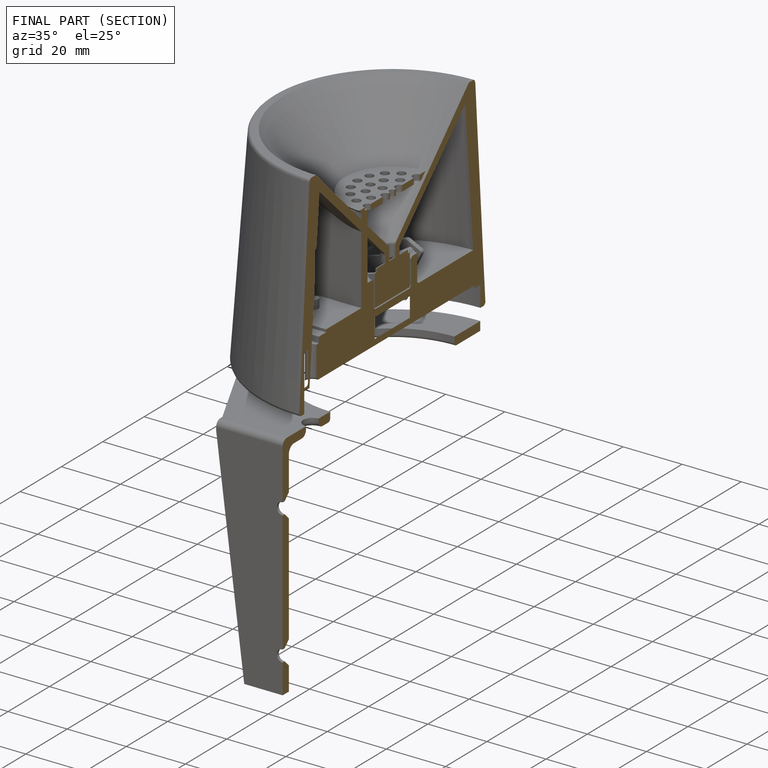
[diagram: finished part — half-section view (interior)]
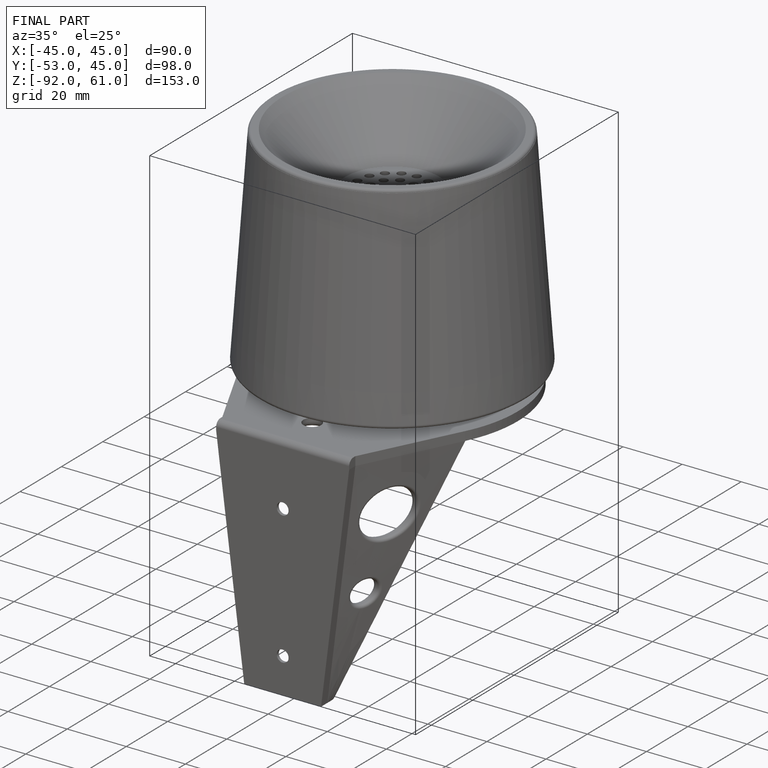
[diagram: finished part — iso view with bounding-box wireframe]
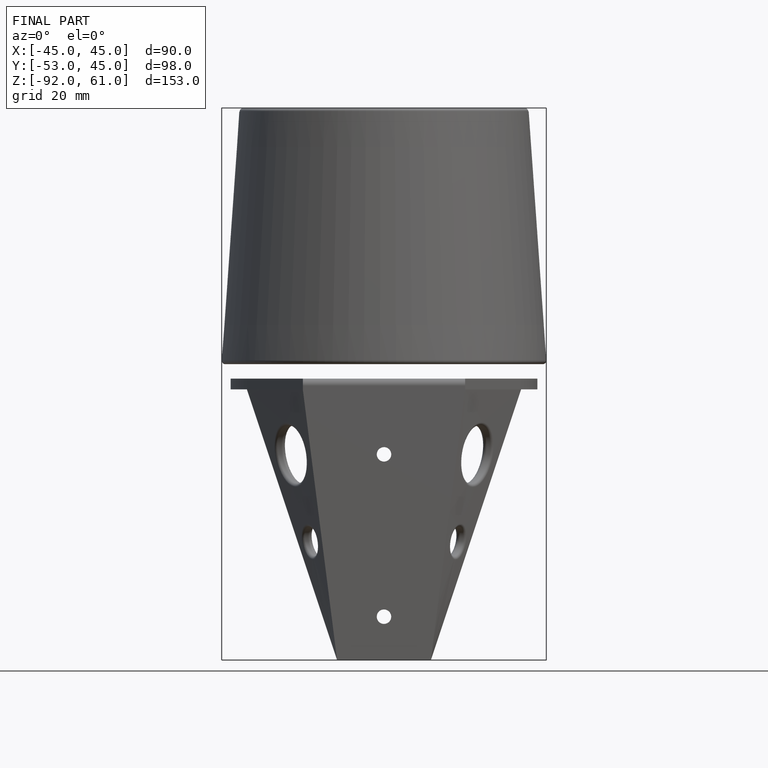
[diagram: finished part — front view with bounding-box wireframe]
